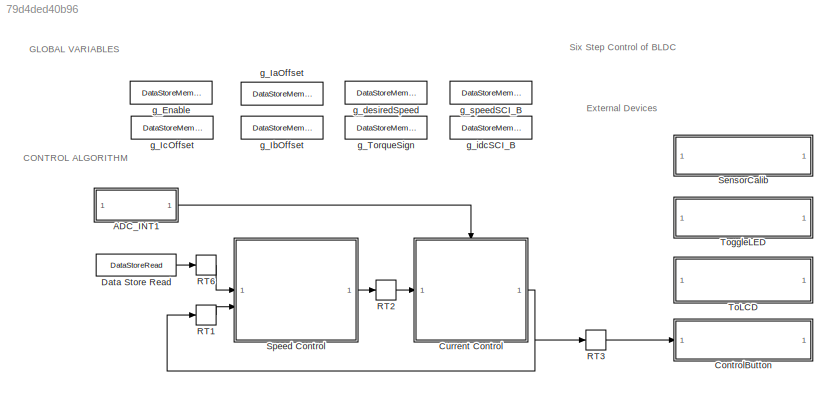
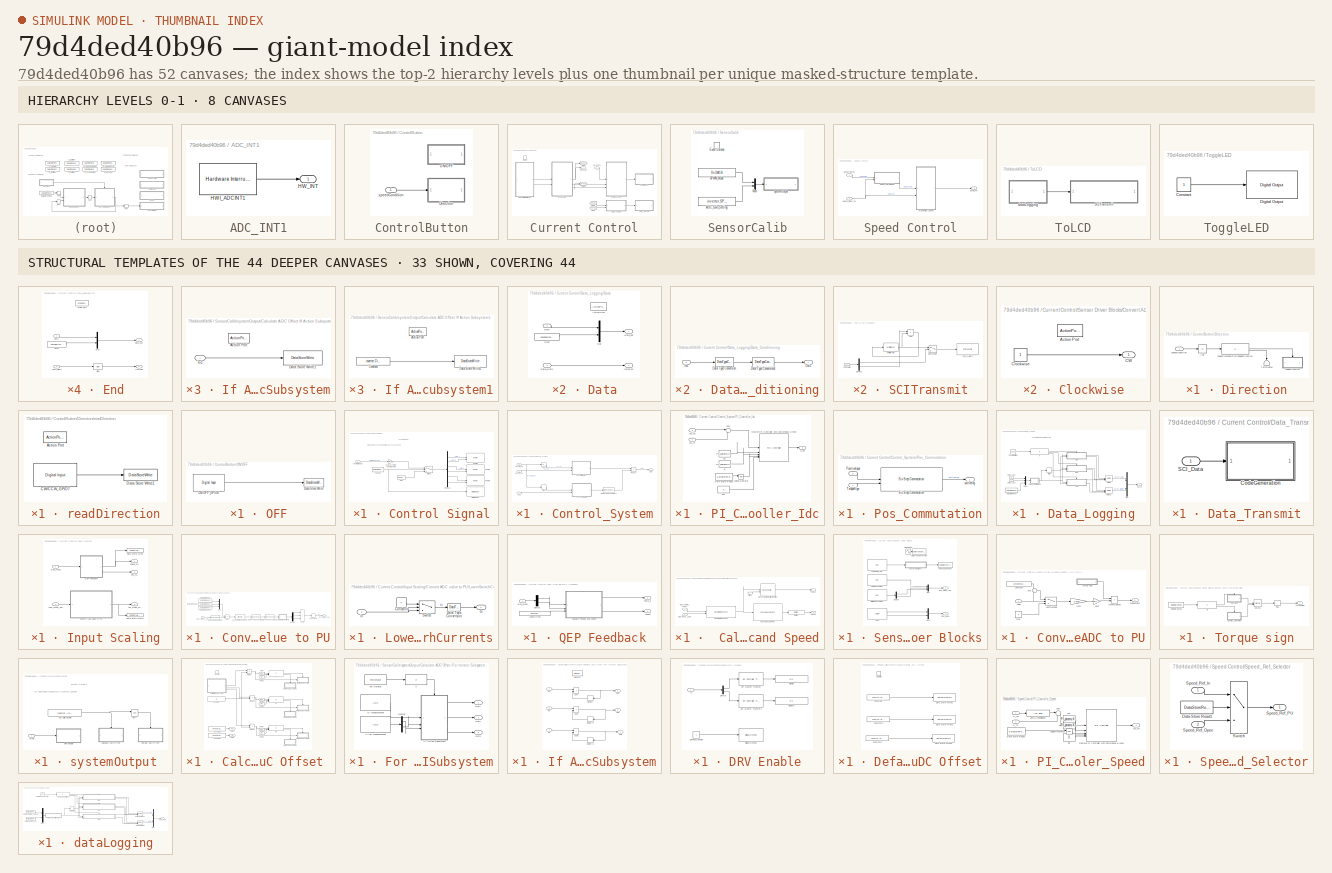
[diagram: thumbnail index - top-2 hierarchy levels (8 canvases) + 33 structural-template representatives of the remaining 44 canvases]
MODEL slx_79d4ded40b96
KIND model
CONFIG AbsTol = auto
CONFIG EnableMultiTasking = on
CONFIG FixedStep = auto
CONFIG InitFcn = mcb_bldc_sixstep_f28069mLaunchPad_data;
CONFIG MaxStep = auto
CONFIG MinStep = auto
CONFIG RelTol = 1e-3
CONFIG SampleTimeConstraint = Unconstrained
CONFIG SolverName = FixedStepDiscrete
CONFIG StartTime = 0.0
CONFIG StopTime = 2
BLOCK [SubSystem] ADC_INT1
  VariantControl = (codegen)
BLOCK [Reference] ADC_INT1/HWI_ADCINT1  REF=svdschedulerlib/Hardware Interrupt v2
  LibrarySourceBlock = c2000lib/Scheduling/Hardware Interrupt
  SourceBlock = svdschedulerlib/Hardware Interrupt v2
  SourceType = HardwareInterrupt
  UserDataPersistent = on
BLOCK [Outport] ADC_INT1/HW_INT
BLOCK [SubSystem] ControlButton
BLOCK [SubSystem] ControlButton/Direction
BLOCK [Abs] ControlButton/Direction/Abs
  SaturateOnIntegerOverflow = off
BLOCK [Terminator] ControlButton/Direction/Terminator
  NameLocation = left
BLOCK [SubSystem] ControlButton/Direction/readDirection
  TreatAsAtomicUnit = on
BLOCK [ActionPort] ControlButton/Direction/readDirection/Action Port
  ActionPortLabel = if(u1 < 0.04)
BLOCK [Reference] ControlButton/Direction/readDirection/CW//CCW_GPIO7  REF=c2806xlib/Digital Input
  SourceBlock = c2806xlib/Digital Input
  SourceType = C2806x GPIO Digital Input
  UserDataPersistent = on
BLOCK [DataStoreWrite] ControlButton/Direction/readDirection/Data Store Write1
  DataStoreName = readTorqueSign
  IndexOptions = Index vector (dialog)
  Indices = 1
  OutputSizes = 1
BLOCK [Inport] ControlButton/Direction/speedCondition
BLOCK [If] ControlButton/Direction/speedThresholdToChangeDirection
  IfExpression = u1 < 0.04
BLOCK [SubSystem] ControlButton/ON//OFF
BLOCK [DataStoreWrite] ControlButton/ON//OFF/Data Store Write
  DataStoreName = Enable
  IndexOptions = Index vector (dialog)
  Indices = 1
  OutputSizes = 1
BLOCK [Reference] ControlButton/ON//OFF/ON//OFF_GPIO6  REF=c2806xlib/Digital Input
  SourceBlock = c2806xlib/Digital Input
  SourceType = C2806x GPIO Digital Input
  UserDataPersistent = on
BLOCK [Inport] ControlButton/speedCondition
BLOCK [SubSystem] Current Control
  RTWMemSecFuncExecute = code_ramfuncs
  RTWSystemCode = Nonreusable function
BLOCK [SubSystem] Current Control/Control Signal
  VariantControl = (codegen)
BLOCK [Demux] Current Control/Control Signal/Demux1
  Outputs = 6
BLOCK [Reference] Current Control/Control Signal/Digital Output  REF=c2806xlib/Digital Output
  SourceBlock = c2806xlib/Digital Output
  SourceType = C2806x GPIO Digital Output
  UserDataPersistent = on
BLOCK [DataStoreRead] Current Control/Control Signal/Enable
  DataStoreName = Enable
  IndexOptions = Index vector (dialog)
  Indices = 1
  OutputSizes = 1
BLOCK [Inport] Current Control/Control Signal/Inverter Signals
BLOCK [Gain] Current Control/Control Signal/Scale_to_PWM_Counter_PRD
  Gain = target.PWM_Counter_Period
  NameLocation = top
  OutDataTypeStr = uint16
  RndMeth = Simplest
BLOCK [Switch] Current Control/Control Signal/Switch1
  InputSameDT = off
  SaturateOnIntegerOverflow = off
  Threshold = 0.5
BLOCK [Reference] Current Control/Control Signal/ePWM1  REF=c2802xlib/ePWM
  SourceBlock = c2802xlib/ePWM
  SourceType = ePWM Type 1-4
BLOCK [Reference] Current Control/Control Signal/ePWM2  REF=c2802xlib/ePWM
  SourceBlock = c2802xlib/ePWM
  SourceType = ePWM Type 1-4
BLOCK [Reference] Current Control/Control Signal/ePWM3  REF=c2802xlib/ePWM
  SourceBlock = c2802xlib/ePWM
  SourceType = ePWM Type 1-4
BLOCK [Constant] Current Control/Control Signal/stop
  OutDataTypeStr = uint16
  Value = [0 0 0 0 0 0]
BLOCK [SubSystem] Current Control/Control_System
BLOCK [Abs] Current Control/Control_System/Abs
  SaturateOnIntegerOverflow = off
BLOCK [DataTypeConversion] Current Control/Control_System/Data Type Conversion1
  OutDataTypeStr = dataType
  RndMeth = Simplest
  SaturateOnIntegerOverflow = off
BLOCK [Outport] Current Control/Control_System/Duty
  VectorParamsAs1DForOutWhenUnconnected = off
BLOCK [Inport] Current Control/Control_System/Idc_fb_PU
  Port = 2
BLOCK [Inport] Current Control/Control_System/Idc_ref_PU
BLOCK [SubSystem] Current Control/Control_System/PI_Controller_Idc
BLOCK [DataStoreRead] Current Control/Control_System/PI_Controller_Idc/Data Store Read1
  DataStoreName = Enable
  IndexOptions = Index vector (dialog)
  Indices = 1
  OutputSizes = 1
BLOCK [Reference] Current Control/Control_System/PI_Controller_Idc/Discrete PI Controller with anti-windup & reset  REF=slpidlib/PID Controller
  LibrarySourceBlock = mcbcontrolslib/PI Controller
  SourceBlock = slpidlib/PID Controller
  SourceType = PID 1dof
BLOCK [Inport] Current Control/Control_System/PI_Controller_Idc/Idc_fb
  Port = 2
BLOCK [Inport] Current Control/Control_System/PI_Controller_Idc/Idc_ref
BLOCK [Constant] Current Control/Control_System/PI_Controller_Idc/Ki
  NameLocation = left
  OutDataTypeStr = dataType
  SampleTime = -1
  Value = PI_params.Ki_i*Ts
BLOCK [Constant] Current Control/Control_System/PI_Controller_Idc/Kp
  NameLocation = left
  OutDataTypeStr = dataType
  SampleTime = -1
  Value = PI_params.Kp_i
BLOCK [Constant] Current Control/Control_System/PI_Controller_Idc/Kp1
  NameLocation = top
  OutDataTypeStr = dataType
  SampleTime = -1
  Value = 0
BLOCK [Logic] Current Control/Control_System/PI_Controller_Idc/Logical Operator
  AllPortsSameDT = off
  IconShape = distinctive
  Operator = NOT
  OutDataTypeStr = boolean
BLOCK [Sum] Current Control/Control_System/PI_Controller_Idc/Sum
  AccumDataTypeStr = Inherit: Same as first input
  Inputs = |+-
  OutDataTypeStr = Inherit: Same as first input
BLOCK [Outport] Current Control/Control_System/PI_Controller_Idc/V_ref
  VectorParamsAs1DForOutWhenUnconnected = off
BLOCK [Inport] Current Control/Control_System/Pos
  Port = 3
BLOCK [SubSystem] Current Control/Control_System/Pos_Commutation
BLOCK [Inport] Current Control/Control_System/Pos_Commutation/PositionInput
  Port = 2
BLOCK [Reference] Current Control/Control_System/Pos_Commutation/Six Step Commutation  REF=mcbcontrolslib/Six Step Commutation
  SourceBlock = mcbcontrolslib/Six Step Commutation
  SourceType = Six-Step Commutation
BLOCK [Inport] Current Control/Control_System/Pos_Commutation/TorqueSign
BLOCK [Outport] Current Control/Control_System/Pos_Commutation/switching
BLOCK [Product] Current Control/Control_System/Product
  OutDataTypeStr = Inherit: Same as first input
  RndMeth = Simplest
BLOCK [Signum] Current Control/Control_System/Sign
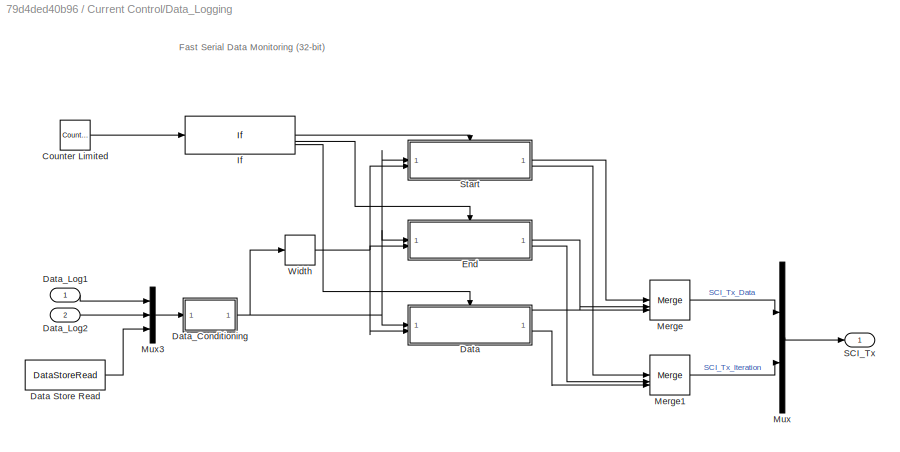
BLOCK [SubSystem] Current Control/Data_Logging
BLOCK [Reference] Current Control/Data_Logging/Counter Limited  REF=simulink/Sources/Counter
Limited
  SourceBlock = simulink/Sources/Counter\nLimited
  SourceType = Counter Limited
BLOCK [SubSystem] Current Control/Data_Logging/Data
  TreatAsAtomicUnit = on
BLOCK [DataStoreRead] Current Control/Data_Logging/Data Store Read
  DataStoreName = desiredSpeed
  IndexOptions = Index vector (dialog)
  Indices = 1
  OutputSizes = 1
BLOCK [ActionPort] Current Control/Data_Logging/Data/Action Port
  ActionPortLabel = else
BLOCK [Inport] Current Control/Data_Logging/Data/Data
BLOCK [Outport] Current Control/Data_Logging/Data/Data_out
  VectorParamsAs1DForOutWhenUnconnected = off
BLOCK [Inport] Current Control/Data_Logging/Data/Data_width
  Port = 2
BLOCK [Outport] Current Control/Data_Logging/Data/Iteration
  Port = 2
  VectorParamsAs1DForOutWhenUnconnected = off
BLOCK [Mux] Current Control/Data_Logging/Data/Mux
  DisplayOption = bar
  Inputs = 2
BLOCK [Constant] Current Control/Data_Logging/Data/Start
  OutDataTypeStr = uint16
  Value = hex2dec('0000')
BLOCK [SubSystem] Current Control/Data_Logging/Data_Conditioning
BLOCK [DataTypeConversion] Current Control/Data_Logging/Data_Conditioning/Data Type Conversion
  OutDataTypeStr = fixdt(1,16,12)
  RndMeth = Simplest
  SaturateOnIntegerOverflow = off
BLOCK [DataTypeConversion] Current Control/Data_Logging/Data_Conditioning/Data Type Conversion3
  ConvertRealWorld = Stored Integer (SI)
  OutDataTypeStr = uint16
  RndMeth = Floor
  SaturateOnIntegerOverflow = off
BLOCK [Inport] Current Control/Data_Logging/Data_Conditioning/In1
BLOCK [Outport] Current Control/Data_Logging/Data_Conditioning/Out1
  VectorParamsAs1DForOutWhenUnconnected = off
BLOCK [Inport] Current Control/Data_Logging/Data_Log1
  NameLocation = left
BLOCK [Inport] Current Control/Data_Logging/Data_Log2
  NameLocation = left
  Port = 2
BLOCK [SubSystem] Current Control/Data_Logging/End
  TreatAsAtomicUnit = on
BLOCK [ActionPort] Current Control/Data_Logging/End/Action Port
  ActionPortLabel = elseif(u1 == 599)
BLOCK [Bias] Current Control/Data_Logging/End/Bias
  Bias = 1
  SaturateOnIntegerOverflow = off
BLOCK [Inport] Current Control/Data_Logging/End/Data
BLOCK [Outport] Current Control/Data_Logging/End/Data_out
  VectorParamsAs1DForOutWhenUnconnected = off
BLOCK [Inport] Current Control/Data_Logging/End/Data_width
  Port = 2
BLOCK [Outport] Current Control/Data_Logging/End/Iteration
  Port = 2
  VectorParamsAs1DForOutWhenUnconnected = off
BLOCK [Mux] Current Control/Data_Logging/End/Mux
  DisplayOption = bar
  Inputs = 2
BLOCK [Constant] Current Control/Data_Logging/End/Start
  OutDataTypeStr = uint16
  Value = hex2dec('4545')
BLOCK [If] Current Control/Data_Logging/If
  ElseIfExpressions = u1 == 599
  IfExpression = u1 == 0
BLOCK [Merge] Current Control/Data_Logging/Merge
  Inputs = 3
BLOCK [Merge] Current Control/Data_Logging/Merge1
  Inputs = 3
BLOCK [Mux] Current Control/Data_Logging/Mux
  DisplayOption = bar
  Inputs = 2
BLOCK [Mux] Current Control/Data_Logging/Mux3
  DisplayOption = bar
  Inputs = 3
BLOCK [Outport] Current Control/Data_Logging/SCI_Tx
BLOCK [SubSystem] Current Control/Data_Logging/Start
  TreatAsAtomicUnit = on
BLOCK [ActionPort] Current Control/Data_Logging/Start/Action Port
  ActionPortLabel = if(u1 == 0)
BLOCK [Bias] Current Control/Data_Logging/Start/Bias
  Bias = 1
  SaturateOnIntegerOverflow = off
BLOCK [Inport] Current Control/Data_Logging/Start/Data
BLOCK [Outport] Current Control/Data_Logging/Start/Data_out
  VectorParamsAs1DForOutWhenUnconnected = off
BLOCK [Inport] Current Control/Data_Logging/Start/Data_width
  Port = 2
BLOCK [Constant] Current Control/Data_Logging/Start/End
  OutDataTypeStr = uint16
  Value = hex2dec('5353')
BLOCK [Outport] Current Control/Data_Logging/Start/Iteration
  Port = 2
  VectorParamsAs1DForOutWhenUnconnected = off
BLOCK [Mux] Current Control/Data_Logging/Start/Mux
  DisplayOption = bar
  Inputs = 2
BLOCK [Width] Current Control/Data_Logging/Width
  DataType = uint16
  OutDataTypeMode = All ports same datatype
BLOCK [SubSystem] Current Control/Data_Transmit
  VariantControl = (codegen)
BLOCK [SubSystem] Current Control/Data_Transmit/CodeGeneration
  TreatAsAtomicUnit = on
BLOCK [Sum] Current Control/Data_Transmit/CodeGeneration/Add
  IconShape = rectangular
  Inputs = +-
  OutDataTypeStr = Inherit: Same as first input
BLOCK [Demux] Current Control/Data_Transmit/CodeGeneration/Demux2
  Outputs = 2
BLOCK [MultiPortSwitch] Current Control/Data_Transmit/CodeGeneration/Index Vector
  InputSameDT = off
  Inputs = 1
  SaturateOnIntegerOverflow = off
BLOCK [Inport] Current Control/Data_Transmit/CodeGeneration/Input
BLOCK [Reference] Current Control/Data_Transmit/CodeGeneration/SCI Transmit  REF=c280xlib/SCI Transmit
  SourceBlock = c280xlib/SCI Transmit
  SourceType = C28x SCI Transmit
BLOCK [WhileIterator] Current Control/Data_Transmit/CodeGeneration/While Iterator
  MaxIters = -1
  OutputDataType = int16
  ShowIterationPort = on
  WhileBlockType = do-while
BLOCK [Inport] Current Control/Data_Transmit/SCI_Data
BLOCK [From] Current Control/From1
  GotoTag = debug1
BLOCK [From] Current Control/From2
  GotoTag = debug2
BLOCK [Goto] Current Control/Goto1
  GotoTag = debug1
BLOCK [Goto] Current Control/Goto3
  GotoTag = debug2
BLOCK [Inport] Current Control/Idc_ref_PU
BLOCK [SubSystem] Current Control/Input Scaling
BLOCK [SubSystem] Current Control/Input Scaling/Convert ADC value to PU
BLOCK [Sum] Current Control/Input Scaling/Convert ADC value to PU/Add
  IconShape = rectangular
  Inputs = -+
BLOCK [DataStoreRead] Current Control/Input Scaling/Convert ADC value to PU/Data Store Read
  DataStoreName = IaOffset
  IndexOptions = Index vector (dialog)
  Indices = 1
  OutputSizes = 1
BLOCK [DataStoreRead] Current Control/Input Scaling/Convert ADC value to PU/Data Store Read1
  DataStoreName = IbOffset
  IndexOptions = Index vector (dialog)
  Indices = 1
  OutputSizes = 1
BLOCK [DataStoreRead] Current Control/Input Scaling/Convert ADC value to PU/Data Store Read2
  DataStoreName = IcOffset
  IndexOptions = Index vector (dialog)
  Indices = 1
  OutputSizes = 1
BLOCK [DataTypeConversion] Current Control/Input Scaling/Convert ADC value to PU/Data Type Conversion
  ConvertRealWorld = Stored Integer (SI)
  OutDataTypeStr = int32
  RndMeth = Floor
  SaturateOnIntegerOverflow = off
BLOCK [DataTypeConversion] Current Control/Input Scaling/Convert ADC value to PU/Data Type Conversion1
  OutDataTypeStr = dataType
  RndMeth = Floor
  SaturateOnIntegerOverflow = off
BLOCK [DataTypeConversion] Current Control/Input Scaling/Convert ADC value to PU/Data Type Conversion3
  ConvertRealWorld = Stored Integer (SI)
  OutDataTypeStr = fixdt(1,32,17)
  RndMeth = Simplest
  SaturateOnIntegerOverflow = off
BLOCK [Demux] Current Control/Input Scaling/Convert ADC value to PU/Demux
  Outputs = 3
BLOCK [Inport] Current Control/Input Scaling/Convert ADC value to PU/Iabc_meas_ADC
BLOCK [Outport] Current Control/Input Scaling/Convert ADC value to PU/Idc_meas_PU
BLOCK [SubSystem] Current Control/Input Scaling/Convert ADC value to PU/LowerSwitchCurrents
BLOCK [Constant] Current Control/Input Scaling/Convert ADC value to PU/LowerSwitchCurrents/Constant
  Value = 0
BLOCK [DataTypeConversion] Current Control/Input Scaling/Convert ADC value to PU/LowerSwitchCurrents/Data Type Conversion
  RndMeth = Floor
  SaturateOnIntegerOverflow = off
BLOCK [Switch] Current Control/Input Scaling/Convert ADC value to PU/LowerSwitchCurrents/Switch
  Criteria = u2 > Threshold
  InputSameDT = off
  SaturateOnIntegerOverflow = off
BLOCK [Outport] Current Control/Input Scaling/Convert ADC value to PU/LowerSwitchCurrents/cu
BLOCK [Inport] Current Control/Input Scaling/Convert ADC value to PU/LowerSwitchCurrents/in
BLOCK [Mux] Current Control/Input Scaling/Convert ADC value to PU/Mux
  DisplayOption = bar
  Inputs = 3
BLOCK [ArithShift] Current Control/Input Scaling/Convert ADC value to PU/Q17 per unit conversion
  BitShiftNumber = -6
  InputPortMap = u0
BLOCK [Sum] Current Control/Input Scaling/Convert ADC value to PU/Sum
  IconShape = rectangular
  Inputs = |+++
BLOCK [UnaryMinus] Current Control/Input Scaling/Convert ADC value to PU/Unary Minus
BLOCK [DataStoreWrite] Current Control/Input Scaling/Data Store Write
  DataStoreName = speedSCI_B
  IndexOptions = Index vector (dialog)
  Indices = 1
  OutputSizes = 1
BLOCK [DataStoreWrite] Current Control/Input Scaling/Data Store Write1
  DataStoreName = idcSCI_B
  IndexOptions = Index vector (dialog)
  Indices = 1
  OutputSizes = 1
BLOCK [Inport] Current Control/Input Scaling/Iabc_meas_ADC
BLOCK [Outport] Current Control/Input Scaling/Idc_meas_PU
  Port = 2
  VectorParamsAs1DForOutWhenUnconnected = off
BLOCK [Outport] Current Control/Input Scaling/Pos_PU
  InitialOutput = 0
  Port = 3
  VectorParamsAs1DForOutWhenUnconnected = off
BLOCK [SubSystem] Current Control/Input Scaling/QEP Feedback
  TreatAsAtomicUnit = on
BLOCK [SubSystem] Current Control/Input Scaling/QEP Feedback/ Calculate Position and Speed
BLOCK [Reference] Current Control/Input Scaling/QEP Feedback/ Calculate Position and Speed/IIR Filter  REF=mcbcontrolslib/IIR Filter
  SourceBlock = mcbcontrolslib/IIR Filter
  SourceType = IIR Filter
BLOCK [Reference] Current Control/Input Scaling/QEP Feedback/ Calculate Position and Speed/Mechanical to Electrical Position  REF=mcbpositiondecoderlib/Mechanical to Electrical Position
  SourceBlock = mcbpositiondecoderlib/Mechanical to Electrical Position
  SourceType = Mechanical to Electrical Position
BLOCK [Inport] Current Control/Input Scaling/QEP Feedback/ Calculate Position and Speed/Offset
  Port = 3
BLOCK [Inport] Current Control/Input Scaling/QEP Feedback/ Calculate Position and Speed/QEP_Index_Latch
  Port = 2
BLOCK [Inport] Current Control/Input Scaling/QEP Feedback/ Calculate Position and Speed/QEP_Position_Count
BLOCK [Reference] Current Control/Input Scaling/QEP Feedback/ Calculate Position and Speed/Quadrature Decoder  REF=mcbpositiondecoderlib/Quadrature Decoder
  SourceBlock = mcbpositiondecoderlib/Quadrature Decoder
  SourceType = Quadrature Decoder
BLOCK [Reference] Current Control/Input Scaling/QEP Feedback/ Calculate Position and Speed/Speed Measurement  REF=mcbpositiondecoderlib/Speed Measurement
  SourceBlock = mcbpositiondecoderlib/Speed Measurement
  SourceType = Speed Measurement
BLOCK [Outport] Current Control/Input Scaling/QEP Feedback/ Calculate Position and Speed/Theta_e
  VectorParamsAs1DForOutWhenUnconnected = off
BLOCK [Outport] Current Control/Input Scaling/QEP Feedback/ Calculate Position and Speed/speed
  Port = 2
  VectorParamsAs1DForOutWhenUnconnected = off
BLOCK [Demux] Current Control/Input Scaling/QEP Feedback/Demux
  Outputs = 2
BLOCK [Constant] Current Control/Input Scaling/QEP Feedback/IndexOffset
  OutDataTypeStr = dataType
  SampleTime = -1
  Value = bldc.PositionOffset
BLOCK [Inport] Current Control/Input Scaling/QEP Feedback/Qep_Meas
BLOCK [Outport] Current Control/Input Scaling/QEP Feedback/Theta_e
  Port = 2
BLOCK [Outport] Current Control/Input Scaling/QEP Feedback/speed
BLOCK [Inport] Current Control/Input Scaling/Qep_Meas
  Port = 2
BLOCK [Outport] Current Control/Input Scaling/speed_PU
  InitialOutput = 0
  VectorParamsAs1DForOutWhenUnconnected = off
BLOCK [SubSystem] Current Control/Sensor Driver Blocks
  VariantControl = (codegen)
BLOCK [SubSystem] Current Control/Sensor Driver Blocks/Convert ADC to PU
BLOCK [Switch] Current Control/Sensor Driver Blocks/Convert ADC to PU/ADCThreshold
  Criteria = u2 > Threshold
  InputSameDT = off
  SaturateOnIntegerOverflow = off
  Threshold = speedRefADCOffset
BLOCK [Inport] Current Control/Sensor Driver Blocks/Convert ADC to PU/ADCin
BLOCK [Constant] Current Control/Sensor Driver Blocks/Convert ADC to PU/Constant
  Value = speedRefADCOffset
BLOCK [Gain] Current Control/Sensor Driver Blocks/Convert ADC to PU/Limit
  Gain = bldc.N_max/bldc.N_base
BLOCK [Sum] Current Control/Sensor Driver Blocks/Convert ADC to PU/Sum
  Inputs = -|+
BLOCK [SubSystem] Current Control/Sensor Driver Blocks/Convert ADC to PU/Torque sign
BLOCK [SubSystem] Current Control/Sensor Driver Blocks/Convert ADC to PU/Torque sign/Clockwise
  TreatAsAtomicUnit = on
BLOCK [ActionPort] Current Control/Sensor Driver Blocks/Convert ADC to PU/Torque sign/Clockwise/Action Port
  ActionPortLabel = if(u1 == 0)
BLOCK [Outport] Current Control/Sensor Driver Blocks/Convert ADC to PU/Torque sign/Clockwise/CW
BLOCK [Constant] Current Control/Sensor Driver Blocks/Convert ADC to PU/Torque sign/Clockwise/Clockwise
BLOCK [SubSystem] Current Control/Sensor Driver Blocks/Convert ADC to PU/Torque sign/Counter_Clockwise
  TreatAsAtomicUnit = on
BLOCK [ActionPort] Current Control/Sensor Driver Blocks/Convert ADC to PU/Torque sign/Counter_Clockwise/Action Port
  ActionPortLabel = elseif(u1 == 1)
BLOCK [Outport] Current Control/Sensor Driver Blocks/Convert ADC to PU/Torque sign/Counter_Clockwise/CCW
BLOCK [Constant] Current Control/Sensor Driver Blocks/Convert ADC to PU/Torque sign/Counter_Clockwise/Counter_Clockwise
  Value = -1
BLOCK [DataStoreRead] Current Control/Sensor Driver Blocks/Convert ADC to PU/Torque sign/Data Store Read
  DataStoreName = readTorqueSign
  IndexOptions = Index vector (dialog)
  Indices = 1
  OutputSizes = 1
BLOCK [If] Current Control/Sensor Driver Blocks/Convert ADC to PU/Torque sign/If1
  ElseIfExpressions = u1 == 1
  IfExpression = u1 == 0
  ShowElse = off
BLOCK [Merge] Current Control/Sensor Driver Blocks/Convert ADC to PU/Torque sign/Merge1
BLOCK [Signum] Current Control/Sensor Driver Blocks/Convert ADC to PU/Torque sign/Sign
BLOCK [Outport] Current Control/Sensor Driver Blocks/Convert ADC to PU/Torque sign/TorqueSign
BLOCK [Product] Current Control/Sensor Driver Blocks/Convert ADC to PU/conductSpeed
  OutDataTypeStr = single
BLOCK [Outport] Current Control/Sensor Driver Blocks/Convert ADC to PU/speedPUout
BLOCK [Constant] Current Control/Sensor Driver Blocks/Convert ADC to PU/stop
  Value = 0
BLOCK [Gain] Current Control/Sensor Driver Blocks/Convert ADC to PU/toPU
  Gain = 1/4096
  OutDataTypeStr = single
BLOCK [DataTypeConversion] Current Control/Sensor Driver Blocks/Data Type Conversion
  Commented = on
  RndMeth = Floor
  SaturateOnIntegerOverflow = off
BLOCK [Demux] Current Control/Sensor Driver Blocks/Demux
  Outputs = 2
BLOCK [Reference] Current Control/Sensor Driver Blocks/IA Measurement  REF=c2802xlib/ADC
  SourceBlock = c2802xlib/ADC
  SourceType = ADC Type 3-5
  UserDataPersistent = on
BLOCK [Reference] Current Control/Sensor Driver Blocks/IC//IB Measurement  REF=c2802xlib/ADC
  SourceBlock = c2802xlib/ADC
  SourceType = ADC Type 3-5
  UserDataPersistent = on
BLOCK [Outport] Current Control/Sensor Driver Blocks/Iabc_Meas_ADC
BLOCK [Mux] Current Control/Sensor Driver Blocks/Mux
  DisplayOption = bar
  Inputs = 3
BLOCK [Mux] Current Control/Sensor Driver Blocks/Mux2
  DisplayOption = bar
  Inputs = 2
BLOCK [Outport] Current Control/Sensor Driver Blocks/Qep_Meas
  Port = 2
BLOCK [Sin] Current Control/Sensor Driver Blocks/SineSpeed
  Amplitude = 0.58
  Commented = on
  Frequency = 2*pi*10
BLOCK [DataStoreWrite] Current Control/Sensor Driver Blocks/desiredSpeedPU
  DataStoreName = desiredSpeed
  IndexOptions = Index vector (dialog)
  Indices = 1
  OutputSizes = 1
BLOCK [Reference] Current Control/Sensor Driver Blocks/eQEP  REF=c280xlib/eQEP
  SourceBlock = c280xlib/eQEP
  SourceType = C28x eQEP
BLOCK [Reference] Current Control/Sensor Driver Blocks/speedRef_ADC  REF=c2802xlib/ADC
  LibrarySourceBlock = c2806xlib/ADC
  SourceBlock = c2802xlib/ADC
  SourceType = ADC Type 3-5
  UserDataPersistent = on
BLOCK [Outport] Current Control/Speed_fb
  InitialOutput = 0
  VectorParamsAs1DForOutWhenUnconnected = off
BLOCK [TriggerPort] Current Control/Trigger
  PortDimensions = 1
  StatesWhenEnabling = held
  TriggerType = function-call
  VariantControl = Variant
BLOCK [DataStoreRead] Data Store Read
  DataStoreName = desiredSpeed
  IndexOptions = Index vector (dialog)
  Indices = 1
  OutputSizes = 1
BLOCK [RateTransition] RT1
  Deterministic = off
  NameLocation = top
  OutPortSampleTime = Ts_speed
BLOCK [RateTransition] RT2
  Deterministic = off
BLOCK [RateTransition] RT3
  Deterministic = off
  OutPortSampleTime = 0.1
BLOCK [RateTransition] RT6
  Deterministic = off
BLOCK [SubSystem] SensorCalib
  TreatAsAtomicUnit = on
BLOCK [Constant] SensorCalib/6PWM_Mode
  OutDataTypeStr = uint16
  Priority = 1000
  SampleTime = -1
  Value = 0x3A16
BLOCK [Constant] SensorCalib/ADC_Gain_Setting
  OutDataTypeStr = uint16
  Priority = 1000
  SampleTime = -1
  Value = inverter.SPI_Gain_Setting
BLOCK [EventListener] SensorCalib/Event Listener
  DisableCoverage = on
  EventName = reset
BLOCK [Mux] SensorCalib/Mux
  DisplayOption = bar
  Inputs = 2
BLOCK [SubSystem] SensorCalib/systemOutput
  VariantControl = (codegen)
BLOCK [Constant] SensorCalib/systemOutput/ADC Calib Enable
  Value = inverter.ADCOffsetCalibEnable
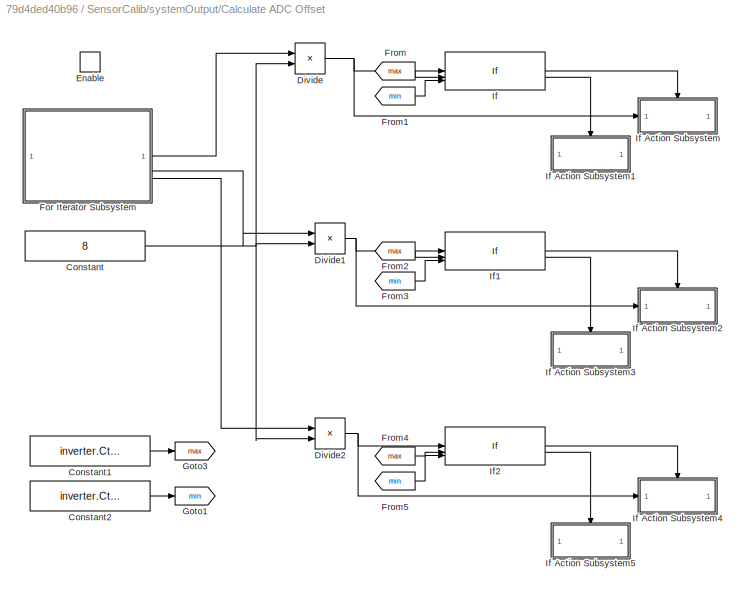
BLOCK [SubSystem] SensorCalib/systemOutput/Calculate ADC Offset 
  Priority = 1001
  TreatAsAtomicUnit = on
BLOCK [Constant] SensorCalib/systemOutput/Calculate ADC Offset /Constant
  Value = 8
BLOCK [Constant] SensorCalib/systemOutput/Calculate ADC Offset /Constant1
  OutDataTypeStr = Inherit: Inherit via back propagation
  Value = inverter.CtSensOffsetMax
BLOCK [Constant] SensorCalib/systemOutput/Calculate ADC Offset /Constant2
  OutDataTypeStr = Inherit: Inherit via back propagation
  Value = inverter.CtSensOffsetMin
BLOCK [Product] SensorCalib/systemOutput/Calculate ADC Offset /Divide
  Inputs = */
  OutDataTypeStr = uint16
BLOCK [Product] SensorCalib/systemOutput/Calculate ADC Offset /Divide1
  Inputs = */
  OutDataTypeStr = uint16
BLOCK [Product] SensorCalib/systemOutput/Calculate ADC Offset /Divide2
  Inputs = */
  OutDataTypeStr = uint16
BLOCK [EnablePort] SensorCalib/systemOutput/Calculate ADC Offset /Enable
BLOCK [SubSystem] SensorCalib/systemOutput/Calculate ADC Offset /For Iterator Subsystem
  TreatAsAtomicUnit = on
BLOCK [Demux] SensorCalib/systemOutput/Calculate ADC Offset /For Iterator Subsystem/Demux
  Outputs = 2
BLOCK [ForIterator] SensorCalib/systemOutput/Calculate ADC Offset /For Iterator Subsystem/For Iterator
  IterationLimit = 16
  IterationVariableDataType = uint16
BLOCK [Reference] SensorCalib/systemOutput/Calculate ADC Offset /For Iterator Subsystem/IA//IB Measurement  REF=c2802xlib/ADC
  SourceBlock = c2802xlib/ADC
  SourceType = ADC Type 3-5
  UserDataPersistent = on
BLOCK [Reference] SensorCalib/systemOutput/Calculate ADC Offset /For Iterator Subsystem/IC Measurement  REF=c2802xlib/ADC
  SourceBlock = c2802xlib/ADC
  SourceType = ADC Type 3-5
  UserDataPersistent = on
BLOCK [If] SensorCalib/systemOutput/Calculate ADC Offset /For Iterator Subsystem/If
  IfExpression = u1 > 8
  ShowElse = off
BLOCK [SubSystem] SensorCalib/systemOutput/Calculate ADC Offset /For Iterator Subsystem/If Action Subsystem
  TreatAsAtomicUnit = on
BLOCK [ActionPort] SensorCalib/systemOutput/Calculate ADC Offset /For Iterator Subsystem/If Action Subsystem/Action Port
  ActionPortLabel = if(u1 > 8)
BLOCK [Inport] SensorCalib/systemOutput/Calculate ADC Offset /For Iterator Subsystem/If Action Subsystem/In1
BLOCK [Inport] SensorCalib/systemOutput/Calculate ADC Offset /For Iterator Subsystem/If Action Subsystem/In2
  Port = 2
BLOCK [Inport] SensorCalib/systemOutput/Calculate ADC Offset /For Iterator Subsystem/If Action Subsystem/In3
  Port = 3
BLOCK [Memory] SensorCalib/systemOutput/Calculate ADC Offset /For Iterator Subsystem/If Action Subsystem/Memory
  InheritSampleTime = on
  NameLocation = top
BLOCK [Memory] SensorCalib/systemOutput/Calculate ADC Offset /For Iterator Subsystem/If Action Subsystem/Memory1
  InheritSampleTime = on
  NameLocation = top
BLOCK [Memory] SensorCalib/systemOutput/Calculate ADC Offset /For Iterator Subsystem/If Action Subsystem/Memory2
  InheritSampleTime = on
  NameLocation = top
BLOCK [Outport] SensorCalib/systemOutput/Calculate ADC Offset /For Iterator Subsystem/If Action Subsystem/Out1
BLOCK [Outport] SensorCalib/systemOutput/Calculate ADC Offset /For Iterator Subsystem/If Action Subsystem/Out2
  Port = 2
BLOCK [Outport] SensorCalib/systemOutput/Calculate ADC Offset /For Iterator Subsystem/If Action Subsystem/Out3
  Port = 3
BLOCK [Sum] SensorCalib/systemOutput/Calculate ADC Offset /For Iterator Subsystem/If Action Subsystem/Sum
  IconShape = rectangular
BLOCK [Sum] SensorCalib/systemOutput/Calculate ADC Offset /For Iterator Subsystem/If Action Subsystem/Sum1
  IconShape = rectangular
BLOCK [Sum] SensorCalib/systemOutput/Calculate ADC Offset /For Iterator Subsystem/If Action Subsystem/Sum2
  IconShape = rectangular
BLOCK [Outport] SensorCalib/systemOutput/Calculate ADC Offset /For Iterator Subsystem/Out1
BLOCK [Outport] SensorCalib/systemOutput/Calculate ADC Offset /For Iterator Subsystem/Out2
  Port = 2
BLOCK [Outport] SensorCalib/systemOutput/Calculate ADC Offset /For Iterator Subsystem/Out3
  Port = 3
BLOCK [From] SensorCalib/systemOutput/Calculate ADC Offset /From
  GotoTag = max
BLOCK [From] SensorCalib/systemOutput/Calculate ADC Offset /From1
  GotoTag = min
BLOCK [From] SensorCalib/systemOutput/Calculate ADC Offset /From2
  GotoTag = max
BLOCK [From] SensorCalib/systemOutput/Calculate ADC Offset /From3
  GotoTag = min
BLOCK [From] SensorCalib/systemOutput/Calculate ADC Offset /From4
  GotoTag = max
BLOCK [From] SensorCalib/systemOutput/Calculate ADC Offset /From5
  GotoTag = min
BLOCK [Goto] SensorCalib/systemOutput/Calculate ADC Offset /Goto1
  GotoTag = min
BLOCK [Goto] SensorCalib/systemOutput/Calculate ADC Offset /Goto3
  GotoTag = max
BLOCK [If] SensorCalib/systemOutput/Calculate ADC Offset /If
  IfExpression = u1 > u3 & u1 < u2
  NumInputs = 3
BLOCK [SubSystem] SensorCalib/systemOutput/Calculate ADC Offset /If Action Subsystem
  TreatAsAtomicUnit = on
BLOCK [ActionPort] SensorCalib/systemOutput/Calculate ADC Offset /If Action Subsystem/Action Port
  ActionPortLabel = if(u1 > u3 & u1 < u2)
BLOCK [DataStoreWrite] SensorCalib/systemOutput/Calculate ADC Offset /If Action Subsystem/Data Store Write1
  DataStoreName = IaOffset
  IndexOptions = Index vector (dialog)
  Indices = 1
  OutputSizes = 1
BLOCK [Inport] SensorCalib/systemOutput/Calculate ADC Offset /If Action Subsystem/In1
BLOCK [SubSystem] SensorCalib/systemOutput/Calculate ADC Offset /If Action Subsystem1
  TreatAsAtomicUnit = on
BLOCK [ActionPort] SensorCalib/systemOutput/Calculate ADC Offset /If Action Subsystem1/Action Port
  ActionPortLabel = else
BLOCK [Constant] SensorCalib/systemOutput/Calculate ADC Offset /If Action Subsystem1/Constant
  OutDataTypeStr = Inherit: Inherit via back propagation
  Value = inverter.CtSensAOffset
BLOCK [DataStoreWrite] SensorCalib/systemOutput/Calculate ADC Offset /If Action Subsystem1/Data Store Write1
  DataStoreName = IaOffset
  IndexOptions = Index vector (dialog)
  Indices = 1
  OutputSizes = 1
BLOCK [SubSystem] SensorCalib/systemOutput/Calculate ADC Offset /If Action Subsystem2
  TreatAsAtomicUnit = on
BLOCK [ActionPort] SensorCalib/systemOutput/Calculate ADC Offset /If Action Subsystem2/Action Port
  ActionPortLabel = if(u1 > u3 & u1 < u2)
BLOCK [DataStoreWrite] SensorCalib/systemOutput/Calculate ADC Offset /If Action Subsystem2/Data Store Write2
  DataStoreName = IbOffset
  IndexOptions = Index vector (dialog)
  Indices = 1
  OutputSizes = 1
BLOCK [Inport] SensorCalib/systemOutput/Calculate ADC Offset /If Action Subsystem2/In1
BLOCK [SubSystem] SensorCalib/systemOutput/Calculate ADC Offset /If Action Subsystem3
  TreatAsAtomicUnit = on
BLOCK [ActionPort] SensorCalib/systemOutput/Calculate ADC Offset /If Action Subsystem3/Action Port
  ActionPortLabel = else
BLOCK [Constant] SensorCalib/systemOutput/Calculate ADC Offset /If Action Subsystem3/Constant1
  OutDataTypeStr = Inherit: Inherit via back propagation
  Value = inverter.CtSensBOffset
BLOCK [DataStoreWrite] SensorCalib/systemOutput/Calculate ADC Offset /If Action Subsystem3/Data Store Write2
  DataStoreName = IbOffset
  IndexOptions = Index vector (dialog)
  Indices = 1
  OutputSizes = 1
BLOCK [SubSystem] SensorCalib/systemOutput/Calculate ADC Offset /If Action Subsystem4
  TreatAsAtomicUnit = on
BLOCK [ActionPort] SensorCalib/systemOutput/Calculate ADC Offset /If Action Subsystem4/Action Port
  ActionPortLabel = if(u1 > u3 & u1 < u2)
BLOCK [DataStoreWrite] SensorCalib/systemOutput/Calculate ADC Offset /If Action Subsystem4/Data Store Write2
  DataStoreName = IcOffset
  IndexOptions = Index vector (dialog)
  Indices = 1
  OutputSizes = 1
BLOCK [Inport] SensorCalib/systemOutput/Calculate ADC Offset /If Action Subsystem4/In1
BLOCK [SubSystem] SensorCalib/systemOutput/Calculate ADC Offset /If Action Subsystem5
  TreatAsAtomicUnit = on
BLOCK [ActionPort] SensorCalib/systemOutput/Calculate ADC Offset /If Action Subsystem5/Action Port
  ActionPortLabel = else
BLOCK [Constant] SensorCalib/systemOutput/Calculate ADC Offset /If Action Subsystem5/Constant1
  OutDataTypeStr = Inherit: Inherit via back propagation
  Value = inverter.CtSensCOffset
BLOCK [DataStoreWrite] SensorCalib/systemOutput/Calculate ADC Offset /If Action Subsystem5/Data Store Write2
  DataStoreName = IcOffset
  IndexOptions = Index vector (dialog)
  Indices = 1
  OutputSizes = 1
BLOCK [If] SensorCalib/systemOutput/Calculate ADC Offset /If1
  IfExpression = u1 > u3 & u1 < u2
  NumInputs = 3
BLOCK [If] SensorCalib/systemOutput/Calculate ADC Offset /If2
  IfExpression = u1 > u3 & u1 < u2
  NumInputs = 3
BLOCK [SubSystem] SensorCalib/systemOutput/DRV Enable
  Priority = 1
BLOCK [Constant] SensorCalib/systemOutput/DRV Enable/DRV830x_Enable
  OutDataTypeStr = Inherit: Inherit via back propagation
BLOCK [Demux] SensorCalib/systemOutput/DRV Enable/Demux
  Outputs = 2
BLOCK [Reference] SensorCalib/systemOutput/DRV Enable/Digital Output  REF=c2806xlib/Digital Output
  SourceBlock = c2806xlib/Digital Output
  SourceType = C2806x GPIO Digital Output
  UserDataPersistent = on
BLOCK [Display] SensorCalib/systemOutput/DRV Enable/Display
  Decimation = 1
  Format = hex (Stored Integer)
BLOCK [Display] SensorCalib/systemOutput/DRV Enable/Display1
  Decimation = 1
  Format = hex (Stored Integer)
BLOCK [Inport] SensorCalib/systemOutput/DRV Enable/In
BLOCK [Reference] SensorCalib/systemOutput/DRV Enable/SPI Master Transfer  REF=c280xlib/SPI Controller Transfer
  SourceBlock = c280xlib/SPI Controller Transfer
  SourceType = codertarget.tic2000.blocks.SPIMasterTransfer
BLOCK [Reference] SensorCalib/systemOutput/DRV Enable/SPI Master Transfer1  REF=c280xlib/SPI Controller Transfer
  SourceBlock = c280xlib/SPI Controller Transfer
  SourceType = codertarget.tic2000.blocks.SPIMasterTransfer
BLOCK [SubSystem] SensorCalib/systemOutput/Default ADC Offset
  Priority = 1001
  TreatAsAtomicUnit = on
BLOCK [Constant] SensorCalib/systemOutput/Default ADC Offset/Constant
  OutDataTypeStr = Inherit: Inherit via back propagation
  Value = inverter.CtSensAOffset
BLOCK [Constant] SensorCalib/systemOutput/Default ADC Offset/Constant1
  OutDataTypeStr = Inherit: Inherit via back propagation
  Value = inverter.CtSensBOffset
BLOCK [Constant] SensorCalib/systemOutput/Default ADC Offset/Constant2
  OutDataTypeStr = Inherit: Inherit via back propagation
  Value = inverter.CtSensCOffset
BLOCK [DataStoreWrite] SensorCalib/systemOutput/Default ADC Offset/Data Store Write1
  DataStoreName = IaOffset
  IndexOptions = Index vector (dialog)
  Indices = 1
  OutputSizes = 1
BLOCK [DataStoreWrite] SensorCalib/systemOutput/Default ADC Offset/Data Store Write2
  DataStoreName = IbOffset
  IndexOptions = Index vector (dialog)
  Indices = 1
  OutputSizes = 1
BLOCK [DataStoreWrite] SensorCalib/systemOutput/Default ADC Offset/Data Store Write3
  DataStoreName = IcOffset
  IndexOptions = Index vector (dialog)
  Indices = 1
  OutputSizes = 1
BLOCK [EnablePort] SensorCalib/systemOutput/Default ADC Offset/Enable
BLOCK [Logic] SensorCalib/systemOutput/NOT
  AllPortsSameDT = off
  IconShape = distinctive
  Operator = NOT
  OutDataTypeStr = boolean
BLOCK [Inport] SensorCalib/systemOutput/mode
BLOCK [SubSystem] Speed Control
  RTWSystemCode = Reusable function
  SystemSampleTime = Ts_speed
  TreatAsAtomicUnit = on
BLOCK [Outport] Speed Control/IdcRef_PU
  VectorParamsAs1DForOutWhenUnconnected = off
BLOCK [SubSystem] Speed Control/PI_Controller_Speed
BLOCK [DataStoreRead] Speed Control/PI_Controller_Speed/Data Store Read2
  DataStoreName = Enable
  IndexOptions = Index vector (dialog)
  Indices = 1
  OutputSizes = 1
BLOCK [Reference] Speed Control/PI_Controller_Speed/Discrete PI Controller with anti-windup & reset  REF=slpidlib/PID Controller
  LibrarySourceBlock = mcbcontrolslib/PI Controller
  SourceBlock = slpidlib/PID Controller
  SourceType = PID 1dof
BLOCK [Outport] Speed Control/PI_Controller_Speed/Idc_ref
  VectorParamsAs1DForOutWhenUnconnected = off
BLOCK [Constant] Speed Control/PI_Controller_Speed/Ki1
  NameLocation = top
  OutDataTypeStr = dataType
  SampleTime = -1
  Value = PI_params.Ki_speed*Ts_speed
BLOCK [Constant] Speed Control/PI_Controller_Speed/Ki2
  NameLocation = top
  OutDataTypeStr = dataType
  SampleTime = -1
  Value = 0
BLOCK [Constant] Speed Control/PI_Controller_Speed/Kp1
  NameLocation = top
  OutDataTypeStr = dataType
  SampleTime = -1
  Value = PI_params.Kp_speed
BLOCK [Logic] Speed Control/PI_Controller_Speed/Logical Operator
  AllPortsSameDT = off
  IconShape = distinctive
  Operator = NOT
  OutDataTypeStr = boolean
BLOCK [Inport] Speed Control/PI_Controller_Speed/N_fb
  NameLocation = left
  Port = 2
BLOCK [Inport] Speed Control/PI_Controller_Speed/N_ref
  NameLocation = left
BLOCK [Sum] Speed Control/PI_Controller_Speed/Sum
  AccumDataTypeStr = Inherit: Same as first input
  Inputs = |+-
  RndMeth = Round
BLOCK [Reference] Speed Control/PI_Controller_Speed/Zero_Cancellation  REF=mcbcontrolslib/IIR Filter
  NameLocation = top
  SourceBlock = mcbcontrolslib/IIR Filter
  SourceType = IIR Filter
BLOCK [Inport] Speed Control/Speed_Meas_PU
  Port = 2
BLOCK [Inport] Speed Control/Speed_Ref_PU
BLOCK [SubSystem] Speed Control/Speed_Ref_Selector
BLOCK [DataStoreRead] Speed Control/Speed_Ref_Selector/Data Store Read1
  DataStoreName = Enable
  IndexOptions = Index vector (dialog)
  Indices = 1
  OutputSizes = 1
BLOCK [Inport] Speed Control/Speed_Ref_Selector/Speed_Ref_In
BLOCK [Inport] Speed Control/Speed_Ref_Selector/Speed_Ref_Open
  Port = 2
BLOCK [Outport] Speed Control/Speed_Ref_Selector/Speed_Ref_PU
BLOCK [Switch] Speed Control/Speed_Ref_Selector/Switch
  Criteria = u2 > Threshold
  InputSameDT = off
  SaturateOnIntegerOverflow = off
  Threshold = 0.5
BLOCK [SubSystem] ToLCD
  RTWFcnNameOpts = Use subsystem name
  RTWFileNameOpts = Use subsystem name
  RTWSystemCode = Reusable function
  SystemSampleTime = 0.1/3
  TreatAsAtomicUnit = on
BLOCK [SubSystem] ToLCD/SCITransmit
  TreatAsAtomicUnit = on
BLOCK [Demux] ToLCD/SCITransmit/Demux2
  Outputs = 2
BLOCK [Inport] ToLCD/SCITransmit/SCITxData
BLOCK [Reference] ToLCD/SCITransmit/SCI_Tx_Block  REF=c280xlib/SCI Transmit
  SourceBlock = c280xlib/SCI Transmit
  SourceType = C28x SCI Transmit
BLOCK [Sum] ToLCD/SCITransmit/add
  IconShape = rectangular
  Inputs = +-
  OutDataTypeStr = Inherit: Same as first input
BLOCK [MultiPortSwitch] ToLCD/SCITransmit/indexVector
  InputSameDT = off
  Inputs = 1
  SaturateOnIntegerOverflow = off
BLOCK [WhileIterator] ToLCD/SCITransmit/whileIterator
  MaxIters = -1
  OutputDataType = int16
  ShowIterationPort = on
  WhileBlockType = do-while
BLOCK [SubSystem] ToLCD/dataLogging
BLOCK [SubSystem] ToLCD/dataLogging/Data
  TreatAsAtomicUnit = on
BLOCK [ActionPort] ToLCD/dataLogging/Data/Action Port
  ActionPortLabel = else
BLOCK [Inport] ToLCD/dataLogging/Data/Data
BLOCK [Outport] ToLCD/dataLogging/Data/Data_out
  VectorParamsAs1DForOutWhenUnconnected = off
BLOCK [Inport] ToLCD/dataLogging/Data/Data_width
  Port = 2
BLOCK [Outport] ToLCD/dataLogging/Data/Iteration
  Port = 2
  VectorParamsAs1DForOutWhenUnconnected = off
BLOCK [Mux] ToLCD/dataLogging/Data/Mux
  DisplayOption = bar
  Inputs = 2
BLOCK [Constant] ToLCD/dataLogging/Data/Start
  OutDataTypeStr = uint16
  Value = hex2dec('FFFF')
BLOCK [SubSystem] ToLCD/dataLogging/Data_Conditioning
BLOCK [DataTypeConversion] ToLCD/dataLogging/Data_Conditioning/convertTo_sfix16_En12
  OutDataTypeStr = fixdt(1,16,12)
  RndMeth = Simplest
  SaturateOnIntegerOverflow = off
BLOCK [DataTypeConversion] ToLCD/dataLogging/Data_Conditioning/convertTo_uint16
  ConvertRealWorld = Stored Integer (SI)
  OutDataTypeStr = uint16
  RndMeth = Floor
  SaturateOnIntegerOverflow = off
BLOCK [Inport] ToLCD/dataLogging/Data_Conditioning/single_Data
BLOCK [Outport] ToLCD/dataLogging/Data_Conditioning/uint16_Data
  VectorParamsAs1DForOutWhenUnconnected = off
BLOCK [SubSystem] ToLCD/dataLogging/End
  TreatAsAtomicUnit = on
BLOCK [ActionPort] ToLCD/dataLogging/End/Action Port
  ActionPortLabel = elseif(u1 == 2)
BLOCK [Bias] ToLCD/dataLogging/End/Bias
  Bias = 1
  SaturateOnIntegerOverflow = off
BLOCK [Inport] ToLCD/dataLogging/End/Data
BLOCK [Outport] ToLCD/dataLogging/End/Data_out
  VectorParamsAs1DForOutWhenUnconnected = off
BLOCK [Inport] ToLCD/dataLogging/End/Data_width
  Port = 2
BLOCK [Outport] ToLCD/dataLogging/End/Iteration
  Port = 2
  VectorParamsAs1DForOutWhenUnconnected = off
BLOCK [Mux] ToLCD/dataLogging/End/Mux
  DisplayOption = bar
  Inputs = 2
BLOCK [Constant] ToLCD/dataLogging/End/Start
  OutDataTypeStr = uint16
  Value = hex2dec('4545')
BLOCK [Mux] ToLCD/dataLogging/Mux
  DisplayOption = bar
  Inputs = 2
BLOCK [Mux] ToLCD/dataLogging/Mux1
  DisplayOption = bar
  Inputs = 2
BLOCK [Outport] ToLCD/dataLogging/SCITxData
BLOCK [SubSystem] ToLCD/dataLogging/Start
  TreatAsAtomicUnit = on
BLOCK [ActionPort] ToLCD/dataLogging/Start/Action Port
  ActionPortLabel = if(u1 == 0)
BLOCK [Bias] ToLCD/dataLogging/Start/Bias
  Bias = 1
  SaturateOnIntegerOverflow = off
BLOCK [Inport] ToLCD/dataLogging/Start/Data
BLOCK [Outport] ToLCD/dataLogging/Start/Data_out
  VectorParamsAs1DForOutWhenUnconnected = off
BLOCK [Inport] ToLCD/dataLogging/Start/Data_width
  Port = 2
BLOCK [Constant] ToLCD/dataLogging/Start/End
  OutDataTypeStr = uint16
  Value = hex2dec('5353')
BLOCK [Outport] ToLCD/dataLogging/Start/Iteration
  Port = 2
  VectorParamsAs1DForOutWhenUnconnected = off
BLOCK [Mux] ToLCD/dataLogging/Start/Mux
  DisplayOption = bar
  Inputs = 2
BLOCK [Reference] ToLCD/dataLogging/dataIndexCounter  REF=simulink/Sources/Counter
Limited
  SourceBlock = simulink/Sources/Counter\nLimited
  SourceType = Counter Limited
BLOCK [DataStoreRead] ToLCD/dataLogging/dataLogging_Idc
  DataStoreName = idcSCI_B
  IndexOptions = Index vector (dialog)
  Indices = 1
  OutputSizes = 1
BLOCK [DataStoreRead] ToLCD/dataLogging/dataLogging_Speed
  DataStoreName = speedSCI_B
  IndexOptions = Index vector (dialog)
  Indices = 1
  OutputSizes = 1
BLOCK [Width] ToLCD/dataLogging/dataWidth
  DataType = uint16
  OutDataTypeMode = All ports same datatype
BLOCK [If] ToLCD/dataLogging/indexCondition
  ElseIfExpressions = u1 == 2
  IfExpression = u1 == 0
BLOCK [Merge] ToLCD/dataLogging/mergeDataOut
  Inputs = 3
BLOCK [Merge] ToLCD/dataLogging/mergeInteration
  Inputs = 3
BLOCK [SubSystem] ToggleLED
BLOCK [Constant] ToggleLED/Constant
  SampleTime = 0.5
BLOCK [Reference] ToggleLED/Digital Output  REF=c2806xlib/Digital Output
  SourceBlock = c2806xlib/Digital Output
  SourceType = C2806x GPIO Digital Output
  UserDataPersistent = on
BLOCK [DataStoreMemory] g_Enable
  DataStoreName = Enable
  NameLocation = top
  OutDataTypeStr = boolean
  ShowAdditionalParam = off
BLOCK [DataStoreMemory] g_IaOffset
  DataStoreName = IaOffset
  InitialValue = inverter.CtSensAOffset
  NameLocation = top
  ShowAdditionalParam = off
BLOCK [DataStoreMemory] g_IbOffset
  DataStoreName = IbOffset
  InitialValue = inverter.CtSensBOffset
  ShowAdditionalParam = off
BLOCK [DataStoreMemory] g_IcOffset
  DataStoreName = IcOffset
  InitialValue = inverter.CtSensCOffset
  ShowAdditionalParam = off
BLOCK [DataStoreMemory] g_TorqueSign
  DataStoreName = readTorqueSign
  InitialValue = 1
  NameLocation = top
  OutDataTypeStr = boolean
  ShowAdditionalParam = off
BLOCK [DataStoreMemory] g_desiredSpeed
  DataStoreName = desiredSpeed
  NameLocation = top
  ShowAdditionalParam = off
BLOCK [DataStoreMemory] g_idcSCI_B
  DataStoreName = idcSCI_B
  ShowAdditionalParam = off
BLOCK [DataStoreMemory] g_speedSCI_B
  DataStoreName = speedSCI_B
  ShowAdditionalParam = off
ANNOTATION (root): CONTROL ALGORITHM
ANNOTATION (root): External Devices
ANNOTATION (root): GLOBAL VARIABLES
ANNOTATION (root): Six Step Control of BLDC
ANNOTATION Current Control/Control Signal: System Outputs
ANNOTATION Current Control/Control Signal: for SBLMB500 connected with LaunchXL-28069M
ANNOTATION Current Control/Data_Logging: Fast Serial Data Monitoring (32-bit)
ANNOTATION SensorCalib/systemOutput: System Outputs
ANNOTATION SensorCalib/systemOutput: for SBLMB500 connected to LaunchXL-28069M
LINE ADC_INT1/HWI_ADCINT1:1 -> ADC_INT1/HW_INT:1
LINE ADC_INT1:1 -> Current Control:trigger
LINE ControlButton/Direction/Abs:1 -> ControlButton/Direction/speedThresholdToChangeDirection:1
LINE ControlButton/Direction/readDirection/CW//CCW_GPIO7:1 -> ControlButton/Direction/readDirection/Data Store Write1:1
LINE ControlButton/Direction/speedCondition:1 -> ControlButton/Direction/Abs:1
LINE ControlButton/Direction/speedThresholdToChangeDirection:1 -> ControlButton/Direction/readDirection:ifaction
LINE ControlButton/Direction/speedThresholdToChangeDirection:2 -> ControlButton/Direction/Terminator:1
LINE ControlButton/ON//OFF/ON//OFF_GPIO6:1 -> ControlButton/ON//OFF/Data Store Write:1
LINE ControlButton/speedCondition:1 -> ControlButton/Direction:1
LINE Current Control/Control Signal/Demux1:1 -> Current Control/Control Signal/ePWM1:1
LINE Current Control/Control Signal/Demux1:2 -> Current Control/Control Signal/ePWM1:2
LINE Current Control/Control Signal/Demux1:3 -> Current Control/Control Signal/ePWM2:1
LINE Current Control/Control Signal/Demux1:4 -> Current Control/Control Signal/ePWM2:2
LINE Current Control/Control Signal/Demux1:5 -> Current Control/Control Signal/ePWM3:1
LINE Current Control/Control Signal/Demux1:6 -> Current Control/Control Signal/ePWM3:2
NET Current Control/Control Signal/Enable:1 -> Current Control/Control Signal/Digital Output:1, Current Control/Control Signal/Switch1:2
LINE Current Control/Control Signal/Inverter Signals:1 -> Current Control/Control Signal/Scale_to_PWM_Counter_PRD:1
LINE Current Control/Control Signal/Scale_to_PWM_Counter_PRD:1 -> Current Control/Control Signal/Switch1:1
LINE Current Control/Control Signal/Switch1:1 -> Current Control/Control Signal/Demux1:1
LINE Current Control/Control Signal/stop:1 -> Current Control/Control Signal/Switch1:3
LINE Current Control/Control_System/Abs:1 -> Current Control/Control_System/PI_Controller_Idc:1
LINE Current Control/Control_System/Data Type Conversion1:1 -> Current Control/Control_System/Product:2
LINE Current Control/Control_System/Idc_fb_PU:1 -> Current Control/Control_System/PI_Controller_Idc:2
NET Current Control/Control_System/Idc_ref_PU:1 -> Current Control/Control_System/Abs:1, Current Control/Control_System/Sign:1
LINE Current Control/Control_System/PI_Controller_Idc/Data Store Read1:1 -> Current Control/Control_System/PI_Controller_Idc/Logical Operator:1
LINE Current Control/Control_System/PI_Controller_Idc/Discrete PI Controller with anti-windup & reset:1 -> Current Control/Control_System/PI_Controller_Idc/V_ref:1
LINE Current Control/Control_System/PI_Controller_Idc/Idc_fb:1 -> Current Control/Control_System/PI_Controller_Idc/Sum:2
LINE Current Control/Control_System/PI_Controller_Idc/Idc_ref:1 -> Current Control/Control_System/PI_Controller_Idc/Sum:1
LINE Current Control/Control_System/PI_Controller_Idc/Ki:1 -> Current Control/Control_System/PI_Controller_Idc/Discrete PI Controller with anti-windup & reset:3
LINE Current Control/Control_System/PI_Controller_Idc/Kp1:1 -> Current Control/Control_System/PI_Controller_Idc/Discrete PI Controller with anti-windup & reset:5
LINE Current Control/Control_System/PI_Controller_Idc/Kp:1 -> Current Control/Control_System/PI_Controller_Idc/Discrete PI Controller with anti-windup & reset:2
LINE Current Control/Control_System/PI_Controller_Idc/Logical Operator:1 -> Current Control/Control_System/PI_Controller_Idc/Discrete PI Controller with anti-windup & reset:4
LINE Current Control/Control_System/PI_Controller_Idc/Sum:1 -> Current Control/Control_System/PI_Controller_Idc/Discrete PI Controller with anti-windup & reset:1
LINE Current Control/Control_System/PI_Controller_Idc:1 -> Current Control/Control_System/Product:1
LINE Current Control/Control_System/Pos:1 -> Current Control/Control_System/Pos_Commutation:2
LINE Current Control/Control_System/Pos_Commutation/PositionInput:1 -> Current Control/Control_System/Pos_Commutation/Six Step Commutation:1
LINE Current Control/Control_System/Pos_Commutation/Six Step Commutation:1 -> Current Control/Control_System/Pos_Commutation/switching:1
LINE Current Control/Control_System/Pos_Commutation/TorqueSign:1 -> Current Control/Control_System/Pos_Commutation/Six Step Commutation:2
LINE Current Control/Control_System/Pos_Commutation:1 -> Current Control/Control_System/Data Type Conversion1:1
LINE Current Control/Control_System/Product:1 -> Current Control/Control_System/Duty:1
LINE Current Control/Control_System/Sign:1 -> Current Control/Control_System/Pos_Commutation:1
LINE Current Control/Control_System:1 -> Current Control/Control Signal:1
LINE Current Control/Data_Logging/Counter Limited:1 -> Current Control/Data_Logging/If:1
LINE Current Control/Data_Logging/Data Store Read:1 -> Current Control/Data_Logging/Mux3:3
LINE Current Control/Data_Logging/Data/Data:1 -> Current Control/Data_Logging/Data/Mux:1
LINE Current Control/Data_Logging/Data/Data_width:1 -> Current Control/Data_Logging/Data/Iteration:1
LINE Current Control/Data_Logging/Data/Mux:1 -> Current Control/Data_Logging/Data/Data_out:1
LINE Current Control/Data_Logging/Data/Start:1 -> Current Control/Data_Logging/Data/Mux:2
LINE Current Control/Data_Logging/Data:1 -> Current Control/Data_Logging/Merge:3
LINE Current Control/Data_Logging/Data:2 -> Current Control/Data_Logging/Merge1:3
LINE Current Control/Data_Logging/Data_Conditioning/Data Type Conversion3:1 -> Current Control/Data_Logging/Data_Conditioning/Out1:1
LINE Current Control/Data_Logging/Data_Conditioning/Data Type Conversion:1 -> Current Control/Data_Logging/Data_Conditioning/Data Type Conversion3:1
LINE Current Control/Data_Logging/Data_Conditioning/In1:1 -> Current Control/Data_Logging/Data_Conditioning/Data Type Conversion:1
NET Current Control/Data_Logging/Data_Conditioning:1 -> Current Control/Data_Logging/Data:1, Current Control/Data_Logging/End:1, Current Control/Data_Logging/Start:1, Current Control/Data_Logging/Width:1
LINE Current Control/Data_Logging/Data_Log1:1 -> Current Control/Data_Logging/Mux3:1
LINE Current Control/Data_Logging/Data_Log2:1 -> Current Control/Data_Logging/Mux3:2
LINE Current Control/Data_Logging/End/Bias:1 -> Current Control/Data_Logging/End/Iteration:1
LINE Current Control/Data_Logging/End/Data:1 -> Current Control/Data_Logging/End/Mux:1
LINE Current Control/Data_Logging/End/Data_width:1 -> Current Control/Data_Logging/End/Bias:1
LINE Current Control/Data_Logging/End/Mux:1 -> Current Control/Data_Logging/End/Data_out:1
LINE Current Control/Data_Logging/End/Start:1 -> Current Control/Data_Logging/End/Mux:2
LINE Current Control/Data_Logging/End:1 -> Current Control/Data_Logging/Merge:2
LINE Current Control/Data_Logging/End:2 -> Current Control/Data_Logging/Merge1:2
LINE Current Control/Data_Logging/If:1 -> Current Control/Data_Logging/Start:ifaction
LINE Current Control/Data_Logging/If:2 -> Current Control/Data_Logging/End:ifaction
LINE Current Control/Data_Logging/If:3 -> Current Control/Data_Logging/Data:ifaction
LINE Current Control/Data_Logging/Merge1:1 -> Current Control/Data_Logging/Mux:2
LINE Current Control/Data_Logging/Merge:1 -> Current Control/Data_Logging/Mux:1
LINE Current Control/Data_Logging/Mux3:1 -> Current Control/Data_Logging/Data_Conditioning:1
LINE Current Control/Data_Logging/Mux:1 -> Current Control/Data_Logging/SCI_Tx:1
LINE Current Control/Data_Logging/Start/Bias:1 -> Current Control/Data_Logging/Start/Iteration:1
LINE Current Control/Data_Logging/Start/Data:1 -> Current Control/Data_Logging/Start/Mux:2
LINE Current Control/Data_Logging/Start/Data_width:1 -> Current Control/Data_Logging/Start/Bias:1
LINE Current Control/Data_Logging/Start/End:1 -> Current Control/Data_Logging/Start/Mux:1
LINE Current Control/Data_Logging/Start/Mux:1 -> Current Control/Data_Logging/Start/Data_out:1
LINE Current Control/Data_Logging/Start:1 -> Current Control/Data_Logging/Merge:1
LINE Current Control/Data_Logging/Start:2 -> Current Control/Data_Logging/Merge1:1
NET Current Control/Data_Logging/Width:1 -> Current Control/Data_Logging/Data:2, Current Control/Data_Logging/End:2, Current Control/Data_Logging/Start:2
LINE Current Control/Data_Logging:1 -> Current Control/Data_Transmit:1
LINE Current Control/Data_Transmit/CodeGeneration/Add:1 -> Current Control/Data_Transmit/CodeGeneration/While Iterator:1
LINE Current Control/Data_Transmit/CodeGeneration/Demux2:1 -> Current Control/Data_Transmit/CodeGeneration/Index Vector:2
LINE Current Control/Data_Transmit/CodeGeneration/Demux2:2 -> Current Control/Data_Transmit/CodeGeneration/Add:1
LINE Current Control/Data_Transmit/CodeGeneration/Index Vector:1 -> Current Control/Data_Transmit/CodeGeneration/SCI Transmit:1
LINE Current Control/Data_Transmit/CodeGeneration/Input:1 -> Current Control/Data_Transmit/CodeGeneration/Demux2:1
NET Current Control/Data_Transmit/CodeGeneration/While Iterator:1 -> Current Control/Data_Transmit/CodeGeneration/Add:2, Current Control/Data_Transmit/CodeGeneration/Index Vector:1
LINE Current Control/Data_Transmit/SCI_Data:1 -> Current Control/Data_Transmit/CodeGeneration:1
LINE Current Control/From1:1 -> Current Control/Data_Logging:1
LINE Current Control/From2:1 -> Current Control/Data_Logging:2
LINE Current Control/Idc_ref_PU:1 -> Current Control/Control_System:1
LINE Current Control/Input Scaling/Convert ADC value to PU/Add:1 -> Current Control/Input Scaling/Convert ADC value to PU/Q17 per unit conversion:1
LINE Current Control/Input Scaling/Convert ADC value to PU/Data Store Read1:1 -> Current Control/Input Scaling/Convert ADC value to PU/Mux:2
LINE Current Control/Input Scaling/Convert ADC value to PU/Data Store Read2:1 -> Current Control/Input Scaling/Convert ADC value to PU/Mux:3
LINE Current Control/Input Scaling/Convert ADC value to PU/Data Store Read:1 -> Current Control/Input Scaling/Convert ADC value to PU/Mux:1
LINE Current Control/Input Scaling/Convert ADC value to PU/Data Type Conversion1:1 -> Current Control/Input Scaling/Convert ADC value to PU/LowerSwitchCurrents:1
LINE Current Control/Input Scaling/Convert ADC value to PU/Data Type Conversion3:1 -> Current Control/Input Scaling/Convert ADC value to PU/Data Type Conversion1:1
LINE Current Control/Input Scaling/Convert ADC value to PU/Data Type Conversion:1 -> Current Control/Input Scaling/Convert ADC value to PU/Add:2
LINE Current Control/Input Scaling/Convert ADC value to PU/Demux:1 -> Current Control/Input Scaling/Convert ADC value to PU/Sum:1
LINE Current Control/Input Scaling/Convert ADC value to PU/Demux:2 -> Current Control/Input Scaling/Convert ADC value to PU/Sum:2
LINE Current Control/Input Scaling/Convert ADC value to PU/Demux:3 -> Current Control/Input Scaling/Convert ADC value to PU/Sum:3
LINE Current Control/Input Scaling/Convert ADC value to PU/Iabc_meas_ADC:1 -> Current Control/Input Scaling/Convert ADC value to PU/Data Type Conversion:1
LINE Current Control/Input Scaling/Convert ADC value to PU/LowerSwitchCurrents/Constant:1 -> Current Control/Input Scaling/Convert ADC value to PU/LowerSwitchCurrents/Switch:1
LINE Current Control/Input Scaling/Convert ADC value to PU/LowerSwitchCurrents/Data Type Conversion:1 -> Current Control/Input Scaling/Convert ADC value to PU/LowerSwitchCurrents/cu:1
LINE Current Control/Input Scaling/Convert ADC value to PU/LowerSwitchCurrents/Switch:1 -> Current Control/Input Scaling/Convert ADC value to PU/LowerSwitchCurrents/Data Type Conversion:1
NET Current Control/Input Scaling/Convert ADC value to PU/LowerSwitchCurrents/in:1 -> Current Control/Input Scaling/Convert ADC value to PU/LowerSwitchCurrents/Switch:2, Current Control/Input Scaling/Convert ADC value to PU/LowerSwitchCurrents/Switch:3
LINE Current Control/Input Scaling/Convert ADC value to PU/LowerSwitchCurrents:1 -> Current Control/Input Scaling/Convert ADC value to PU/Demux:1
LINE Current Control/Input Scaling/Convert ADC value to PU/Mux:1 -> Current Control/Input Scaling/Convert ADC value to PU/Add:1
LINE Current Control/Input Scaling/Convert ADC value to PU/Q17 per unit conversion:1 -> Current Control/Input Scaling/Convert ADC value to PU/Data Type Conversion3:1
LINE Current Control/Input Scaling/Convert ADC value to PU/Sum:1 -> Current Control/Input Scaling/Convert ADC value to PU/Unary Minus:1
LINE Current Control/Input Scaling/Convert ADC value to PU/Unary Minus:1 -> Current Control/Input Scaling/Convert ADC value to PU/Idc_meas_PU:1
NET Current Control/Input Scaling/Convert ADC value to PU:1 -> Current Control/Input Scaling/Data Store Write1:1, Current Control/Input Scaling/Idc_meas_PU:1
LINE Current Control/Input Scaling/Iabc_meas_ADC:1 -> Current Control/Input Scaling/Convert ADC value to PU:1
LINE Current Control/Input Scaling/QEP Feedback/ Calculate Position and Speed/IIR Filter:1 -> Current Control/Input Scaling/QEP Feedback/ Calculate Position and Speed/speed:1
LINE Current Control/Input Scaling/QEP Feedback/ Calculate Position and Speed/Mechanical to Electrical Position:1 -> Current Control/Input Scaling/QEP Feedback/ Calculate Position and Speed/Theta_e:1
LINE Current Control/Input Scaling/QEP Feedback/ Calculate Position and Speed/Offset:1 -> Current Control/Input Scaling/QEP Feedback/ Calculate Position and Speed/Mechanical to Electrical Position:2
LINE Current Control/Input Scaling/QEP Feedback/ Calculate Position and Speed/QEP_Index_Latch:1 -> Current Control/Input Scaling/QEP Feedback/ Calculate Position and Speed/Quadrature Decoder:2
LINE Current Control/Input Scaling/QEP Feedback/ Calculate Position and Speed/QEP_Position_Count:1 -> Current Control/Input Scaling/QEP Feedback/ Calculate Position and Speed/Quadrature Decoder:1
NET Current Control/Input Scaling/QEP Feedback/ Calculate Position and Speed/Quadrature Decoder:1 -> Current Control/Input Scaling/QEP Feedback/ Calculate Position and Speed/Mechanical to Electrical Position:1, Current Control/Input Scaling/QEP Feedback/ Calculate Position and Speed/Speed Measurement:1
LINE Current Control/Input Scaling/QEP Feedback/ Calculate Position and Speed/Speed Measurement:1 -> Current Control/Input Scaling/QEP Feedback/ Calculate Position and Speed/IIR Filter:1
LINE Current Control/Input Scaling/QEP Feedback/ Calculate Position and Speed:1 -> Current Control/Input Scaling/QEP Feedback/Theta_e:1
LINE Current Control/Input Scaling/QEP Feedback/ Calculate Position and Speed:2 -> Current Control/Input Scaling/QEP Feedback/speed:1
LINE Current Control/Input Scaling/QEP Feedback/Demux:1 -> Current Control/Input Scaling/QEP Feedback/ Calculate Position and Speed:1
LINE Current Control/Input Scaling/QEP Feedback/Demux:2 -> Current Control/Input Scaling/QEP Feedback/ Calculate Position and Speed:2
LINE Current Control/Input Scaling/QEP Feedback/IndexOffset:1 -> Current Control/Input Scaling/QEP Feedback/ Calculate Position and Speed:3
LINE Current Control/Input Scaling/QEP Feedback/Qep_Meas:1 -> Current Control/Input Scaling/QEP Feedback/Demux:1
NET Current Control/Input Scaling/QEP Feedback:1 -> Current Control/Input Scaling/Data Store Write:1, Current Control/Input Scaling/speed_PU:1
LINE Current Control/Input Scaling/QEP Feedback:2 -> Current Control/Input Scaling/Pos_PU:1
LINE Current Control/Input Scaling/Qep_Meas:1 -> Current Control/Input Scaling/QEP Feedback:1
NET Current Control/Input Scaling:1 -> Current Control/Goto1:1, Current Control/Speed_fb:1
NET Current Control/Input Scaling:2 -> Current Control/Control_System:2, Current Control/Goto3:1
LINE Current Control/Input Scaling:3 -> Current Control/Control_System:3
LINE Current Control/Sensor Driver Blocks/Convert ADC to PU/ADCThreshold:1 -> Current Control/Sensor Driver Blocks/Convert ADC to PU/toPU:1
NET Current Control/Sensor Driver Blocks/Convert ADC to PU/ADCin:1 -> Current Control/Sensor Driver Blocks/Convert ADC to PU/ADCThreshold:2, Current Control/Sensor Driver Blocks/Convert ADC to PU/Sum:2
LINE Current Control/Sensor Driver Blocks/Convert ADC to PU/Constant:1 -> Current Control/Sensor Driver Blocks/Convert ADC to PU/Sum:1
LINE Current Control/Sensor Driver Blocks/Convert ADC to PU/Limit:1 -> Current Control/Sensor Driver Blocks/Convert ADC to PU/conductSpeed:2
LINE Current Control/Sensor Driver Blocks/Convert ADC to PU/Sum:1 -> Current Control/Sensor Driver Blocks/Convert ADC to PU/ADCThreshold:1
LINE Current Control/Sensor Driver Blocks/Convert ADC to PU/Torque sign/Clockwise/Clockwise:1 -> Current Control/Sensor Driver Blocks/Convert ADC to PU/Torque sign/Clockwise/CW:1
LINE Current Control/Sensor Driver Blocks/Convert ADC to PU/Torque sign/Clockwise:1 -> Current Control/Sensor Driver Blocks/Convert ADC to PU/Torque sign/Merge1:1
LINE Current Control/Sensor Driver Blocks/Convert ADC to PU/Torque sign/Counter_Clockwise/Counter_Clockwise:1 -> Current Control/Sensor Driver Blocks/Convert ADC to PU/Torque sign/Counter_Clockwise/CCW:1
LINE Current Control/Sensor Driver Blocks/Convert ADC to PU/Torque sign/Counter_Clockwise:1 -> Current Control/Sensor Driver Blocks/Convert ADC to PU/Torque sign/Merge1:2
LINE Current Control/Sensor Driver Blocks/Convert ADC to PU/Torque sign/Data Store Read:1 -> Current Control/Sensor Driver Blocks/Convert ADC to PU/Torque sign/If1:1
LINE Current Control/Sensor Driver Blocks/Convert ADC to PU/Torque sign/If1:1 -> Current Control/Sensor Driver Blocks/Convert ADC to PU/Torque sign/Clockwise:ifaction
LINE Current Control/Sensor Driver Blocks/Convert ADC to PU/Torque sign/If1:2 -> Current Control/Sensor Driver Blocks/Convert ADC to PU/Torque sign/Counter_Clockwise:ifaction
LINE Current Control/Sensor Driver Blocks/Convert ADC to PU/Torque sign/Merge1:1 -> Current Control/Sensor Driver Blocks/Convert ADC to PU/Torque sign/Sign:1
LINE Current Control/Sensor Driver Blocks/Convert ADC to PU/Torque sign/Sign:1 -> Current Control/Sensor Driver Blocks/Convert ADC to PU/Torque sign/TorqueSign:1
LINE Current Control/Sensor Driver Blocks/Convert ADC to PU/Torque sign:1 -> Current Control/Sensor Driver Blocks/Convert ADC to PU/conductSpeed:1
LINE Current Control/Sensor Driver Blocks/Convert ADC to PU/conductSpeed:1 -> Current Control/Sensor Driver Blocks/Convert ADC to PU/speedPUout:1
LINE Current Control/Sensor Driver Blocks/Convert ADC to PU/stop:1 -> Current Control/Sensor Driver Blocks/Convert ADC to PU/ADCThreshold:3
LINE Current Control/Sensor Driver Blocks/Convert ADC to PU/toPU:1 -> Current Control/Sensor Driver Blocks/Convert ADC to PU/Limit:1
LINE Current Control/Sensor Driver Blocks/Convert ADC to PU:1 -> Current Control/Sensor Driver Blocks/desiredSpeedPU:1
LINE Current Control/Sensor Driver Blocks/Demux:1 -> Current Control/Sensor Driver Blocks/Mux:3
LINE Current Control/Sensor Driver Blocks/Demux:2 -> Current Control/Sensor Driver Blocks/Mux:2
LINE Current Control/Sensor Driver Blocks/IA Measurement:1 -> Current Control/Sensor Driver Blocks/Mux:1
LINE Current Control/Sensor Driver Blocks/IC//IB Measurement:1 -> Current Control/Sensor Driver Blocks/Demux:1
LINE Current Control/Sensor Driver Blocks/Mux2:1 -> Current Control/Sensor Driver Blocks/Qep_Meas:1
LINE Current Control/Sensor Driver Blocks/Mux:1 -> Current Control/Sensor Driver Blocks/Iabc_Meas_ADC:1
LINE Current Control/Sensor Driver Blocks/SineSpeed:1 -> Current Control/Sensor Driver Blocks/Data Type Conversion:1
LINE Current Control/Sensor Driver Blocks/eQEP:1 -> Current Control/Sensor Driver Blocks/Mux2:1
LINE Current Control/Sensor Driver Blocks/eQEP:2 -> Current Control/Sensor Driver Blocks/Mux2:2
LINE Current Control/Sensor Driver Blocks/speedRef_ADC:1 -> Current Control/Sensor Driver Blocks/Convert ADC to PU:1
LINE Current Control/Sensor Driver Blocks:1 -> Current Control/Input Scaling:1
LINE Current Control/Sensor Driver Blocks:2 -> Current Control/Input Scaling:2
NET Current Control:1 -> RT1:1, RT3:1
LINE Data Store Read:1 -> RT6:1
LINE RT1:1 -> Speed Control:2
LINE RT2:1 -> Current Control:1
LINE RT3:1 -> ControlButton:1
LINE RT6:1 -> Speed Control:1
LINE SensorCalib/6PWM_Mode:1 -> SensorCalib/Mux:1
LINE SensorCalib/ADC_Gain_Setting:1 -> SensorCalib/Mux:2
LINE SensorCalib/Mux:1 -> SensorCalib/systemOutput:1
NET SensorCalib/systemOutput/ADC Calib Enable:1 -> SensorCalib/systemOutput/Calculate ADC Offset :enable, SensorCalib/systemOutput/NOT:1
LINE SensorCalib/systemOutput/Calculate ADC Offset /Constant1:1 -> SensorCalib/systemOutput/Calculate ADC Offset /Goto3:1
LINE SensorCalib/systemOutput/Calculate ADC Offset /Constant2:1 -> SensorCalib/systemOutput/Calculate ADC Offset /Goto1:1
NET SensorCalib/systemOutput/Calculate ADC Offset /Constant:1 -> SensorCalib/systemOutput/Calculate ADC Offset /Divide1:2, SensorCalib/systemOutput/Calculate ADC Offset /Divide2:2, SensorCalib/systemOutput/Calculate ADC Offset /Divide:2
NET SensorCalib/systemOutput/Calculate ADC Offset /Divide1:1 -> SensorCalib/systemOutput/Calculate ADC Offset /If Action Subsystem2:1, SensorCalib/systemOutput/Calculate ADC Offset /If1:1
NET SensorCalib/systemOutput/Calculate ADC Offset /Divide2:1 -> SensorCalib/systemOutput/Calculate ADC Offset /If Action Subsystem4:1, SensorCalib/systemOutput/Calculate ADC Offset /If2:1
NET SensorCalib/systemOutput/Calculate ADC Offset /Divide:1 -> SensorCalib/systemOutput/Calculate ADC Offset /If Action Subsystem:1, SensorCalib/systemOutput/Calculate ADC Offset /If:1
LINE SensorCalib/systemOutput/Calculate ADC Offset /For Iterator Subsystem/Demux:1 -> SensorCalib/systemOutput/Calculate ADC Offset /For Iterator Subsystem/If Action Subsystem:3
LINE SensorCalib/systemOutput/Calculate ADC Offset /For Iterator Subsystem/Demux:2 -> SensorCalib/systemOutput/Calculate ADC Offset /For Iterator Subsystem/If Action Subsystem:2
LINE SensorCalib/systemOutput/Calculate ADC Offset /For Iterator Subsystem/For Iterator:1 -> SensorCalib/systemOutput/Calculate ADC Offset /For Iterator Subsystem/If:1
LINE SensorCalib/systemOutput/Calculate ADC Offset /For Iterator Subsystem/IA//IB Measurement:1 -> SensorCalib/systemOutput/Calculate ADC Offset /For Iterator Subsystem/Demux:1
LINE SensorCalib/systemOutput/Calculate ADC Offset /For Iterator Subsystem/IC Measurement:1 -> SensorCalib/systemOutput/Calculate ADC Offset /For Iterator Subsystem/If Action Subsystem:1
LINE SensorCalib/systemOutput/Calculate ADC Offset /For Iterator Subsystem/If Action Subsystem/In1:1 -> SensorCalib/systemOutput/Calculate ADC Offset /For Iterator Subsystem/If Action Subsystem/Sum:1
LINE SensorCalib/systemOutput/Calculate ADC Offset /For Iterator Subsystem/If Action Subsystem/In2:1 -> SensorCalib/systemOutput/Calculate ADC Offset /For Iterator Subsystem/If Action Subsystem/Sum1:1
LINE SensorCalib/systemOutput/Calculate ADC Offset /For Iterator Subsystem/If Action Subsystem/In3:1 -> SensorCalib/systemOutput/Calculate ADC Offset /For Iterator Subsystem/If Action Subsystem/Sum2:1
LINE SensorCalib/systemOutput/Calculate ADC Offset /For Iterator Subsystem/If Action Subsystem/Memory1:1 -> SensorCalib/systemOutput/Calculate ADC Offset /For Iterator Subsystem/If Action Subsystem/Sum1:2
LINE SensorCalib/systemOutput/Calculate ADC Offset /For Iterator Subsystem/If Action Subsystem/Memory2:1 -> SensorCalib/systemOutput/Calculate ADC Offset /For Iterator Subsystem/If Action Subsystem/Sum2:2
LINE SensorCalib/systemOutput/Calculate ADC Offset /For Iterator Subsystem/If Action Subsystem/Memory:1 -> SensorCalib/systemOutput/Calculate ADC Offset /For Iterator Subsystem/If Action Subsystem/Sum:2
NET SensorCalib/systemOutput/Calculate ADC Offset /For Iterator Subsystem/If Action Subsystem/Sum1:1 -> SensorCalib/systemOutput/Calculate ADC Offset /For Iterator Subsystem/If Action Subsystem/Memory1:1, SensorCalib/systemOutput/Calculate ADC Offset /For Iterator Subsystem/If Action Subsystem/Out2:1
NET SensorCalib/systemOutput/Calculate ADC Offset /For Iterator Subsystem/If Action Subsystem/Sum2:1 -> SensorCalib/systemOutput/Calculate ADC Offset /For Iterator Subsystem/If Action Subsystem/Memory2:1, SensorCalib/systemOutput/Calculate ADC Offset /For Iterator Subsystem/If Action Subsystem/Out3:1
NET SensorCalib/systemOutput/Calculate ADC Offset /For Iterator Subsystem/If Action Subsystem/Sum:1 -> SensorCalib/systemOutput/Calculate ADC Offset /For Iterator Subsystem/If Action Subsystem/Memory:1, SensorCalib/systemOutput/Calculate ADC Offset /For Iterator Subsystem/If Action Subsystem/Out1:1
LINE SensorCalib/systemOutput/Calculate ADC Offset /For Iterator Subsystem/If Action Subsystem:1 -> SensorCalib/systemOutput/Calculate ADC Offset /For Iterator Subsystem/Out1:1
LINE SensorCalib/systemOutput/Calculate ADC Offset /For Iterator Subsystem/If Action Subsystem:2 -> SensorCalib/systemOutput/Calculate ADC Offset /For Iterator Subsystem/Out2:1
LINE SensorCalib/systemOutput/Calculate ADC Offset /For Iterator Subsystem/If Action Subsystem:3 -> SensorCalib/systemOutput/Calculate ADC Offset /For Iterator Subsystem/Out3:1
LINE SensorCalib/systemOutput/Calculate ADC Offset /For Iterator Subsystem/If:1 -> SensorCalib/systemOutput/Calculate ADC Offset /For Iterator Subsystem/If Action Subsystem:ifaction
LINE SensorCalib/systemOutput/Calculate ADC Offset /For Iterator Subsystem:1 -> SensorCalib/systemOutput/Calculate ADC Offset /Divide:1
LINE SensorCalib/systemOutput/Calculate ADC Offset /For Iterator Subsystem:2 -> SensorCalib/systemOutput/Calculate ADC Offset /Divide1:1
LINE SensorCalib/systemOutput/Calculate ADC Offset /For Iterator Subsystem:3 -> SensorCalib/systemOutput/Calculate ADC Offset /Divide2:1
LINE SensorCalib/systemOutput/Calculate ADC Offset /From1:1 -> SensorCalib/systemOutput/Calculate ADC Offset /If:3
LINE SensorCalib/systemOutput/Calculate ADC Offset /From2:1 -> SensorCalib/systemOutput/Calculate ADC Offset /If1:2
LINE SensorCalib/systemOutput/Calculate ADC Offset /From3:1 -> SensorCalib/systemOutput/Calculate ADC Offset /If1:3
LINE SensorCalib/systemOutput/Calculate ADC Offset /From4:1 -> SensorCalib/systemOutput/Calculate ADC Offset /If2:2
LINE SensorCalib/systemOutput/Calculate ADC Offset /From5:1 -> SensorCalib/systemOutput/Calculate ADC Offset /If2:3
LINE SensorCalib/systemOutput/Calculate ADC Offset /From:1 -> SensorCalib/systemOutput/Calculate ADC Offset /If:2
LINE SensorCalib/systemOutput/Calculate ADC Offset /If Action Subsystem/In1:1 -> SensorCalib/systemOutput/Calculate ADC Offset /If Action Subsystem/Data Store Write1:1
LINE SensorCalib/systemOutput/Calculate ADC Offset /If Action Subsystem1/Constant:1 -> SensorCalib/systemOutput/Calculate ADC Offset /If Action Subsystem1/Data Store Write1:1
LINE SensorCalib/systemOutput/Calculate ADC Offset /If Action Subsystem2/In1:1 -> SensorCalib/systemOutput/Calculate ADC Offset /If Action Subsystem2/Data Store Write2:1
LINE SensorCalib/systemOutput/Calculate ADC Offset /If Action Subsystem3/Constant1:1 -> SensorCalib/systemOutput/Calculate ADC Offset /If Action Subsystem3/Data Store Write2:1
LINE SensorCalib/systemOutput/Calculate ADC Offset /If Action Subsystem4/In1:1 -> SensorCalib/systemOutput/Calculate ADC Offset /If Action Subsystem4/Data Store Write2:1
LINE SensorCalib/systemOutput/Calculate ADC Offset /If Action Subsystem5/Constant1:1 -> SensorCalib/systemOutput/Calculate ADC Offset /If Action Subsystem5/Data Store Write2:1
LINE SensorCalib/systemOutput/Calculate ADC Offset /If1:1 -> SensorCalib/systemOutput/Calculate ADC Offset /If Action Subsystem2:ifaction
LINE SensorCalib/systemOutput/Calculate ADC Offset /If1:2 -> SensorCalib/systemOutput/Calculate ADC Offset /If Action Subsystem3:ifaction
LINE SensorCalib/systemOutput/Calculate ADC Offset /If2:1 -> SensorCalib/systemOutput/Calculate ADC Offset /If Action Subsystem4:ifaction
LINE SensorCalib/systemOutput/Calculate ADC Offset /If2:2 -> SensorCalib/systemOutput/Calculate ADC Offset /If Action Subsystem5:ifaction
LINE SensorCalib/systemOutput/Calculate ADC Offset /If:1 -> SensorCalib/systemOutput/Calculate ADC Offset /If Action Subsystem:ifaction
LINE SensorCalib/systemOutput/Calculate ADC Offset /If:2 -> SensorCalib/systemOutput/Calculate ADC Offset /If Action Subsystem1:ifaction
LINE SensorCalib/systemOutput/DRV Enable/DRV830x_Enable:1 -> SensorCalib/systemOutput/DRV Enable/Digital Output:1
LINE SensorCalib/systemOutput/DRV Enable/Demux:1 -> SensorCalib/systemOutput/DRV Enable/SPI Master Transfer:1
LINE SensorCalib/systemOutput/DRV Enable/Demux:2 -> SensorCalib/systemOutput/DRV Enable/SPI Master Transfer1:1
LINE SensorCalib/systemOutput/DRV Enable/In:1 -> SensorCalib/systemOutput/DRV Enable/Demux:1
LINE SensorCalib/systemOutput/DRV Enable/SPI Master Transfer1:1 -> SensorCalib/systemOutput/DRV Enable/Display1:1
LINE SensorCalib/systemOutput/DRV Enable/SPI Master Transfer:1 -> SensorCalib/systemOutput/DRV Enable/Display:1
LINE SensorCalib/systemOutput/Default ADC Offset/Constant1:1 -> SensorCalib/systemOutput/Default ADC Offset/Data Store Write2:1
LINE SensorCalib/systemOutput/Default ADC Offset/Constant2:1 -> SensorCalib/systemOutput/Default ADC Offset/Data Store Write3:1
LINE SensorCalib/systemOutput/Default ADC Offset/Constant:1 -> SensorCalib/systemOutput/Default ADC Offset/Data Store Write1:1
LINE SensorCalib/systemOutput/NOT:1 -> SensorCalib/systemOutput/Default ADC Offset:enable
LINE SensorCalib/systemOutput/mode:1 -> SensorCalib/systemOutput/DRV Enable:1
LINE Speed Control/PI_Controller_Speed/Data Store Read2:1 -> Speed Control/PI_Controller_Speed/Logical Operator:1
LINE Speed Control/PI_Controller_Speed/Discrete PI Controller with anti-windup & reset:1 -> Speed Control/PI_Controller_Speed/Idc_ref:1
LINE Speed Control/PI_Controller_Speed/Ki1:1 -> Speed Control/PI_Controller_Speed/Discrete PI Controller with anti-windup & reset:3
LINE Speed Control/PI_Controller_Speed/Ki2:1 -> Speed Control/PI_Controller_Speed/Discrete PI Controller with anti-windup & reset:5
LINE Speed Control/PI_Controller_Speed/Kp1:1 -> Speed Control/PI_Controller_Speed/Discrete PI Controller with anti-windup & reset:2
LINE Speed Control/PI_Controller_Speed/Logical Operator:1 -> Speed Control/PI_Controller_Speed/Discrete PI Controller with anti-windup & reset:4
LINE Speed Control/PI_Controller_Speed/N_fb:1 -> Speed Control/PI_Controller_Speed/Sum:2
LINE Speed Control/PI_Controller_Speed/N_ref:1 -> Speed Control/PI_Controller_Speed/Zero_Cancellation:1
LINE Speed Control/PI_Controller_Speed/Sum:1 -> Speed Control/PI_Controller_Speed/Discrete PI Controller with anti-windup & reset:1
LINE Speed Control/PI_Controller_Speed/Zero_Cancellation:1 -> Speed Control/PI_Controller_Speed/Sum:1
LINE Speed Control/PI_Controller_Speed:1 -> Speed Control/IdcRef_PU:1
NET Speed Control/Speed_Meas_PU:1 -> Speed Control/PI_Controller_Speed:2, Speed Control/Speed_Ref_Selector:2
LINE Speed Control/Speed_Ref_PU:1 -> Speed Control/Speed_Ref_Selector:1
LINE Speed Control/Speed_Ref_Selector/Data Store Read1:1 -> Speed Control/Speed_Ref_Selector/Switch:2
LINE Speed Control/Speed_Ref_Selector/Speed_Ref_In:1 -> Speed Control/Speed_Ref_Selector/Switch:1
LINE Speed Control/Speed_Ref_Selector/Speed_Ref_Open:1 -> Speed Control/Speed_Ref_Selector/Switch:3
LINE Speed Control/Speed_Ref_Selector/Switch:1 -> Speed Control/Speed_Ref_Selector/Speed_Ref_PU:1
LINE Speed Control/Speed_Ref_Selector:1 -> Speed Control/PI_Controller_Speed:1
LINE Speed Control:1 -> RT2:1
LINE ToLCD/SCITransmit/Demux2:1 -> ToLCD/SCITransmit/indexVector:2
LINE ToLCD/SCITransmit/Demux2:2 -> ToLCD/SCITransmit/add:1
LINE ToLCD/SCITransmit/SCITxData:1 -> ToLCD/SCITransmit/Demux2:1
LINE ToLCD/SCITransmit/add:1 -> ToLCD/SCITransmit/whileIterator:1
LINE ToLCD/SCITransmit/indexVector:1 -> ToLCD/SCITransmit/SCI_Tx_Block:1
NET ToLCD/SCITransmit/whileIterator:1 -> ToLCD/SCITransmit/add:2, ToLCD/SCITransmit/indexVector:1
LINE ToLCD/dataLogging/Data/Data:1 -> ToLCD/dataLogging/Data/Mux:1
LINE ToLCD/dataLogging/Data/Data_width:1 -> ToLCD/dataLogging/Data/Iteration:1
LINE ToLCD/dataLogging/Data/Mux:1 -> ToLCD/dataLogging/Data/Data_out:1
LINE ToLCD/dataLogging/Data/Start:1 -> ToLCD/dataLogging/Data/Mux:2
LINE ToLCD/dataLogging/Data:1 -> ToLCD/dataLogging/mergeDataOut:3
LINE ToLCD/dataLogging/Data:2 -> ToLCD/dataLogging/mergeInteration:3
LINE ToLCD/dataLogging/Data_Conditioning/convertTo_sfix16_En12:1 -> ToLCD/dataLogging/Data_Conditioning/convertTo_uint16:1
LINE ToLCD/dataLogging/Data_Conditioning/convertTo_uint16:1 -> ToLCD/dataLogging/Data_Conditioning/uint16_Data:1
LINE ToLCD/dataLogging/Data_Conditioning/single_Data:1 -> ToLCD/dataLogging/Data_Conditioning/convertTo_sfix16_En12:1
NET ToLCD/dataLogging/Data_Conditioning:1 -> ToLCD/dataLogging/Data:1, ToLCD/dataLogging/End:1, ToLCD/dataLogging/Start:1, ToLCD/dataLogging/dataWidth:1
LINE ToLCD/dataLogging/End/Bias:1 -> ToLCD/dataLogging/End/Iteration:1
LINE ToLCD/dataLogging/End/Data:1 -> ToLCD/dataLogging/End/Mux:1
LINE ToLCD/dataLogging/End/Data_width:1 -> ToLCD/dataLogging/End/Bias:1
LINE ToLCD/dataLogging/End/Mux:1 -> ToLCD/dataLogging/End/Data_out:1
LINE ToLCD/dataLogging/End/Start:1 -> ToLCD/dataLogging/End/Mux:2
LINE ToLCD/dataLogging/End:1 -> ToLCD/dataLogging/mergeDataOut:2
LINE ToLCD/dataLogging/End:2 -> ToLCD/dataLogging/mergeInteration:2
LINE ToLCD/dataLogging/Mux1:1 -> ToLCD/dataLogging/Data_Conditioning:1
LINE ToLCD/dataLogging/Mux:1 -> ToLCD/dataLogging/SCITxData:1
LINE ToLCD/dataLogging/Start/Bias:1 -> ToLCD/dataLogging/Start/Iteration:1
LINE ToLCD/dataLogging/Start/Data:1 -> ToLCD/dataLogging/Start/Mux:2
LINE ToLCD/dataLogging/Start/Data_width:1 -> ToLCD/dataLogging/Start/Bias:1
LINE ToLCD/dataLogging/Start/End:1 -> ToLCD/dataLogging/Start/Mux:1
LINE ToLCD/dataLogging/Start/Mux:1 -> ToLCD/dataLogging/Start/Data_out:1
LINE ToLCD/dataLogging/Start:1 -> ToLCD/dataLogging/mergeDataOut:1
LINE ToLCD/dataLogging/Start:2 -> ToLCD/dataLogging/mergeInteration:1
LINE ToLCD/dataLogging/dataIndexCounter:1 -> ToLCD/dataLogging/indexCondition:1
LINE ToLCD/dataLogging/dataLogging_Idc:1 -> ToLCD/dataLogging/Mux1:2
LINE ToLCD/dataLogging/dataLogging_Speed:1 -> ToLCD/dataLogging/Mux1:1
NET ToLCD/dataLogging/dataWidth:1 -> ToLCD/dataLogging/Data:2, ToLCD/dataLogging/End:2, ToLCD/dataLogging/Start:2
LINE ToLCD/dataLogging/indexCondition:1 -> ToLCD/dataLogging/Start:ifaction
LINE ToLCD/dataLogging/indexCondition:2 -> ToLCD/dataLogging/End:ifaction
LINE ToLCD/dataLogging/indexCondition:3 -> ToLCD/dataLogging/Data:ifaction
LINE ToLCD/dataLogging/mergeDataOut:1 -> ToLCD/dataLogging/Mux:1
LINE ToLCD/dataLogging/mergeInteration:1 -> ToLCD/dataLogging/Mux:2
LINE ToLCD/dataLogging:1 -> ToLCD/SCITransmit:1
LINE ToggleLED/Constant:1 -> ToggleLED/Digital Output:1
note: NET lines group one-source signal fan-out (src -> all destinations, sorted); 1:1 wires keep LINE
